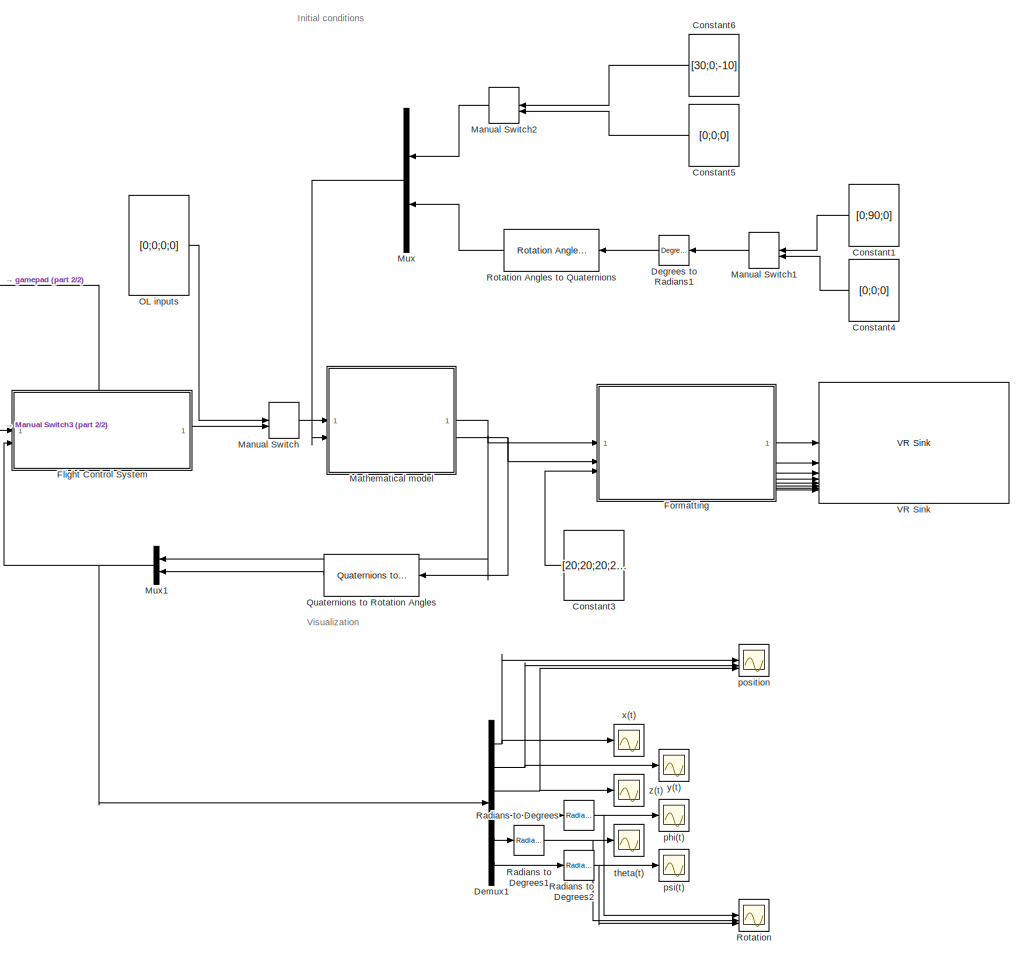
[diagram: root canvas - part 1/2, middle right region]
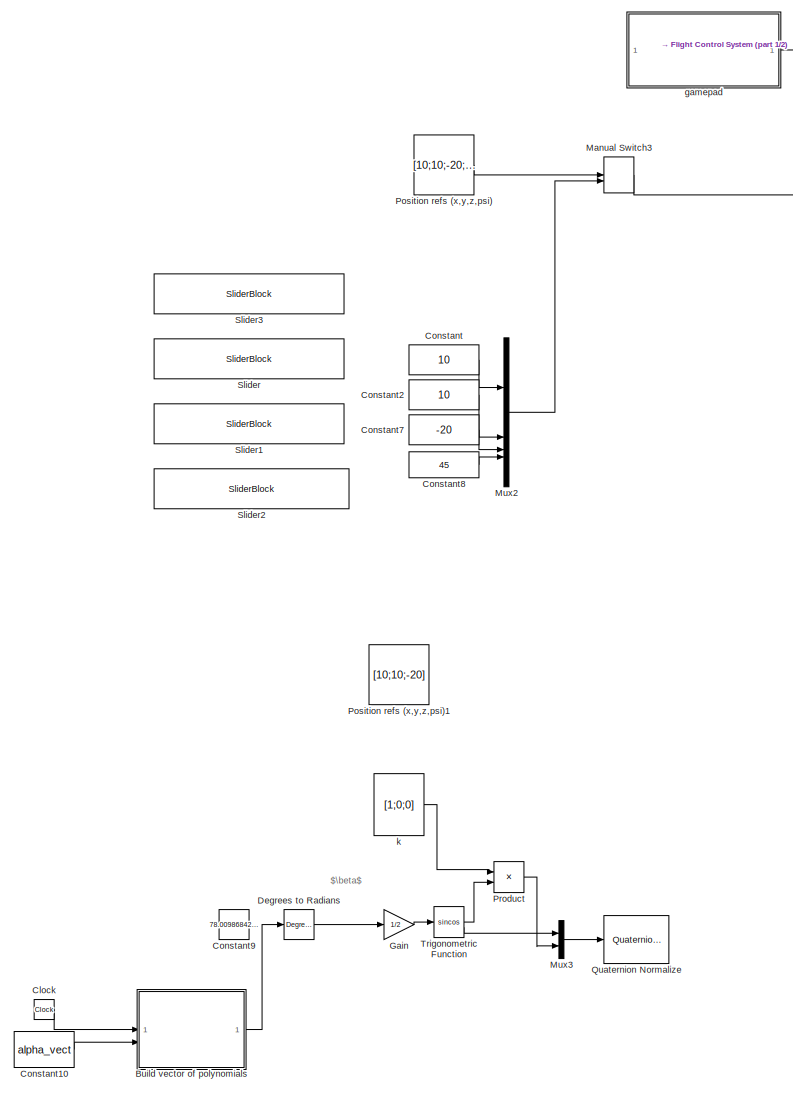
[diagram: root canvas - part 2/2, left side, full height]
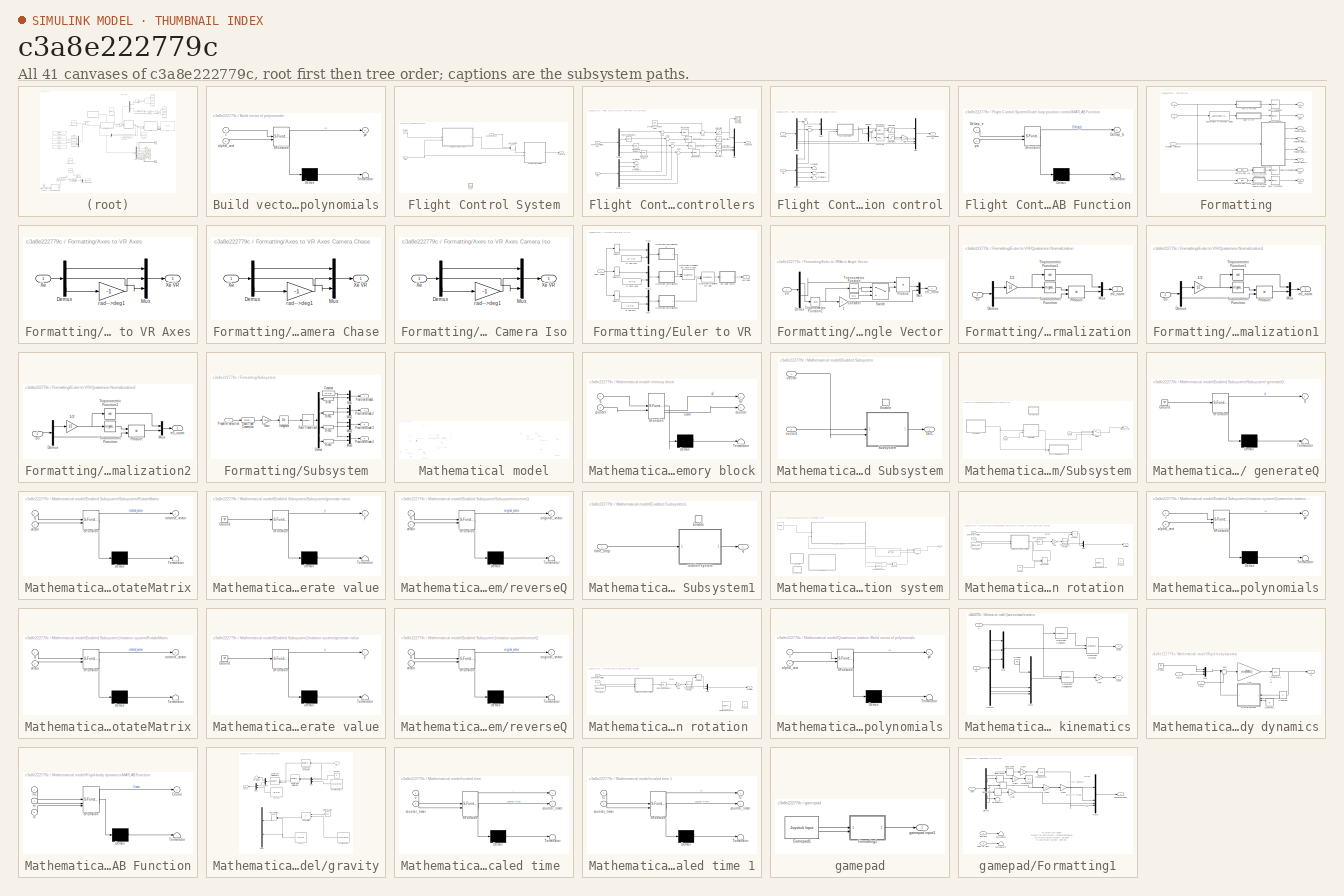
[diagram: thumbnail index - all 41 canvases of the model, root first then tree order]
MODEL slx_c3a8e222779c
KIND model
CONFIG AbsTol = auto
CONFIG EnableMultiTasking = on
CONFIG FixedStep = 0.005
CONFIG MaxStep = auto
CONFIG MinStep = auto
CONFIG RelTol = 1e-3
CONFIG SampleTimeConstraint = Unconstrained
CONFIG SolverName = ode3
CONFIG StartTime = 0
CONFIG StopTime = inf
BLOCK [SubSystem] Build vector of polynomials
  Commented = on
  ErrorFcn = Stateflow.Translate.translate
  PermitHierarchicalResolution = ExplicitOnly
  SFBlockType = MATLAB Function
  TreatAsAtomicUnit = on
BLOCK [Demux] Build vector of polynomials/ Demux 
  Outputs = 1
BLOCK [S-Function] Build vector of polynomials/ SFunction 
  EnableBusSupport = on
  FunctionName = sf_sfun
  PortCounts = [2 2]
  SFcnIsStateOwnerBlock = off
  SFunctionDeploymentMode = off
  Tag = Stateflow S-Function 4
BLOCK [Terminator] Build vector of polynomials/ Terminator 
BLOCK [Inport] Build vector of polynomials/alpha_vect
  Port = 2
BLOCK [Inport] Build vector of polynomials/t
BLOCK [Outport] Build vector of polynomials/yd
BLOCK [Clock] Clock
  Commented = on
BLOCK [Constant] Constant
  Value = 10
BLOCK [Constant] Constant1
  NameLocation = top
  Value = [0;90;0]
  VectorParams1D = off
BLOCK [Constant] Constant10
  Commented = on
  Value = alpha_vect
  VectorParams1D = off
BLOCK [Constant] Constant2
  Value = 10
BLOCK [Constant] Constant3
  Value = [20;20;20;20]
  VectorParams1D = off
BLOCK [Constant] Constant4
  NameLocation = top
  Value = [0;0;0]
  VectorParams1D = off
BLOCK [Constant] Constant5
  Value = [0;0;0]
  VectorParams1D = off
BLOCK [Constant] Constant6
  Value = [30;0;-10]
  VectorParams1D = off
BLOCK [Constant] Constant7
  Value = -20
BLOCK [Constant] Constant8
  Value = 45
BLOCK [Constant] Constant9
  Commented = on
  Value = 78.00986842105263
BLOCK [Reference] Degrees to Radians  REF=simulink_extras/Transformations/Degrees to
Radians
  Commented = on
  SourceBlock = simulink_extras/Transformations/Degrees to\nRadians
  SourceType = DegreesToRadians
BLOCK [Reference] Degrees to Radians1  REF=simulink_extras/Transformations/Degrees to
Radians
  NameLocation = top
  SourceBlock = simulink_extras/Transformations/Degrees to\nRadians
  SourceType = DegreesToRadians
BLOCK [Demux] Demux1
  Outputs = 6
BLOCK [SubSystem] Flight Control System
  PortSchema = {"entries":[{"content":{"sides":[{"content":{"connectorIds":["In1","In2"]},"type":"ConnectorPlacement.EquallySpacedRectSide","uuid":"8ffec179-99fb-4b4c-a09d-a73fa0154dea"},{"content":{"connectorIds":["Out1"],"side":"RIGHT"},"type":"ConnectorPlacement.EquallySpacedRectSide","uuid":"b9ff487d-1da1-449a-81c9-f1838b0d3727"},{"content":{"connectorIds":["In3"],"side":"TOP"},"type":"ConnectorPlacement.Equ...<+251ch>
BLOCK [Outport] Flight Control System/Fz,mx,my,mz
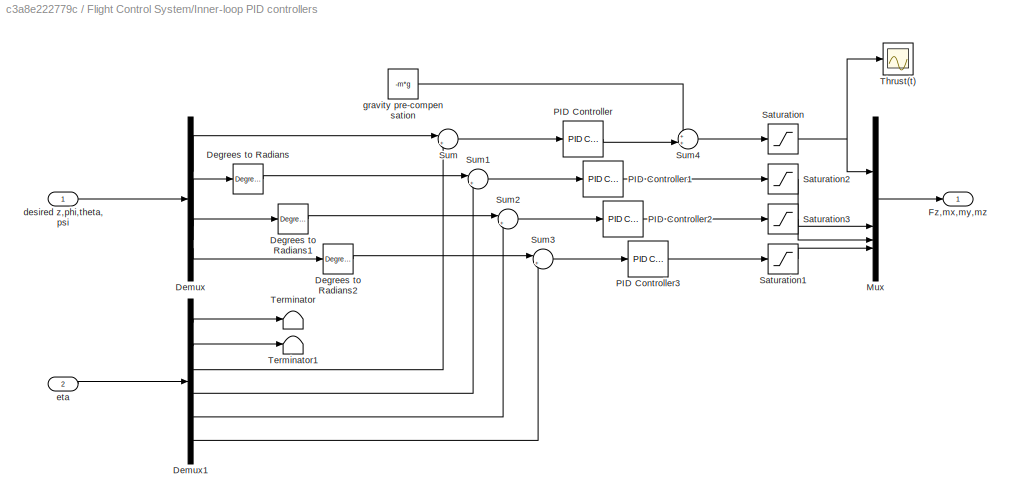
BLOCK [SubSystem] Flight Control System/Inner-loop PID controllers
BLOCK [Reference] Flight Control System/Inner-loop PID controllers/Degrees to Radians  REF=simulink_extras/Transformations/Degrees to
Radians
  SourceBlock = simulink_extras/Transformations/Degrees to\nRadians
  SourceType = DegreesToRadians
BLOCK [Reference] Flight Control System/Inner-loop PID controllers/Degrees to Radians1  REF=simulink_extras/Transformations/Degrees to
Radians
  SourceBlock = simulink_extras/Transformations/Degrees to\nRadians
  SourceType = DegreesToRadians
BLOCK [Reference] Flight Control System/Inner-loop PID controllers/Degrees to Radians2  REF=simulink_extras/Transformations/Degrees to
Radians
  SourceBlock = simulink_extras/Transformations/Degrees to\nRadians
  SourceType = DegreesToRadians
BLOCK [Demux] Flight Control System/Inner-loop PID controllers/Demux
BLOCK [Demux] Flight Control System/Inner-loop PID controllers/Demux1
  Outputs = 6
BLOCK [Outport] Flight Control System/Inner-loop PID controllers/Fz,mx,my,mz
BLOCK [Mux] Flight Control System/Inner-loop PID controllers/Mux
  DisplayOption = bar
BLOCK [Reference] Flight Control System/Inner-loop PID controllers/PID Controller  REF=slpidlib/PID Controller
  LibrarySourceBlock = simulink/Continuous/PID Controller
  SourceBlock = slpidlib/PID Controller
  SourceType = PID 1dof
BLOCK [Reference] Flight Control System/Inner-loop PID controllers/PID Controller1  REF=slpidlib/PID Controller
  LibrarySourceBlock = simulink/Continuous/PID Controller
  SourceBlock = slpidlib/PID Controller
  SourceType = PID 1dof
BLOCK [Reference] Flight Control System/Inner-loop PID controllers/PID Controller2  REF=slpidlib/PID Controller
  LibrarySourceBlock = simulink/Continuous/PID Controller
  SourceBlock = slpidlib/PID Controller
  SourceType = PID 1dof
BLOCK [Reference] Flight Control System/Inner-loop PID controllers/PID Controller3  REF=slpidlib/PID Controller
  LibrarySourceBlock = simulink/Continuous/PID Controller
  SourceBlock = slpidlib/PID Controller
  SourceType = PID 1dof
BLOCK [Saturate] Flight Control System/Inner-loop PID controllers/Saturation
  LowerLimit = -100
  UpperLimit = 100
BLOCK [Saturate] Flight Control System/Inner-loop PID controllers/Saturation1
  LowerLimit = -100
  UpperLimit = 100
BLOCK [Saturate] Flight Control System/Inner-loop PID controllers/Saturation2
  LowerLimit = -100
  UpperLimit = 100
BLOCK [Saturate] Flight Control System/Inner-loop PID controllers/Saturation3
  LowerLimit = -100
  UpperLimit = 100
BLOCK [Sum] Flight Control System/Inner-loop PID controllers/Sum
  Inputs = |+-
BLOCK [Sum] Flight Control System/Inner-loop PID controllers/Sum1
  Inputs = |+-
BLOCK [Sum] Flight Control System/Inner-loop PID controllers/Sum2
  Inputs = |+-
BLOCK [Sum] Flight Control System/Inner-loop PID controllers/Sum3
  Inputs = |+-
BLOCK [Sum] Flight Control System/Inner-loop PID controllers/Sum4
  Inputs = ++|
BLOCK [Terminator] Flight Control System/Inner-loop PID controllers/Terminator
BLOCK [Terminator] Flight Control System/Inner-loop PID controllers/Terminator1
BLOCK [Scope] Flight Control System/Inner-loop PID controllers/Thrust(t)
  Floating = off
  NumInputPorts = 1
  ScopeSpecificationString = Simulink.scopes.TimeScopeBlockCfg('CurrentConfiguration', extmgr.ConfigurationSet(extmgr.Configuration('Core','General UI',true),extmgr.Configuration('Core','Source UI',true),extmgr.Configuration('Sources','WiredSimulink',true,'DataLoggingVariableName','ScopeData6'),extmgr.Configuration('Visuals','Time Domain',true,'SerializedDisplays',{struct('MinYLimReal','-112.66583','MaxYLimReal','13.99248','Y...<+1456ch>
BLOCK [Inport] Flight Control System/Inner-loop PID controllers/desired z,phi,theta,psi
BLOCK [Inport] Flight Control System/Inner-loop PID controllers/eta
  Port = 2
BLOCK [Constant] Flight Control System/Inner-loop PID controllers/gravity pre-compensation
  Value = -m*g
BLOCK [ManualSwitch] Flight Control System/Manual Switch
  CurrentSetting = 0
BLOCK [SubSystem] Flight Control System/Outer loop position control
BLOCK [Demux] Flight Control System/Outer loop position control/Demux
BLOCK [Demux] Flight Control System/Outer loop position control/Demux1
  Outputs = 6
BLOCK [Demux] Flight Control System/Outer loop position control/Demux2
  Outputs = 2
BLOCK [Gain] Flight Control System/Outer loop position control/Gain
  Gain = -1
BLOCK [SubSystem] Flight Control System/Outer loop position control/MATLAB Function
  ErrorFcn = Stateflow.Translate.translate
  PermitHierarchicalResolution = ExplicitOnly
  SFBlockType = MATLAB Function
  TreatAsAtomicUnit = on
BLOCK [Demux] Flight Control System/Outer loop position control/MATLAB Function/ Demux 
  Outputs = 1
BLOCK [S-Function] Flight Control System/Outer loop position control/MATLAB Function/ SFunction 
  EnableBusSupport = on
  FunctionName = sf_sfun
  PortCounts = [2 2]
  SFcnIsStateOwnerBlock = off
  SFunctionDeploymentMode = off
  Tag = Stateflow S-Function 1
BLOCK [Terminator] Flight Control System/Outer loop position control/MATLAB Function/ Terminator 
BLOCK [Outport] Flight Control System/Outer loop position control/MATLAB Function/Deltap_b
BLOCK [Inport] Flight Control System/Outer loop position control/MATLAB Function/Deltap_e
BLOCK [Inport] Flight Control System/Outer loop position control/MATLAB Function/psi
  Port = 2
BLOCK [Mux] Flight Control System/Outer loop position control/Mux
  DisplayOption = bar
BLOCK [Mux] Flight Control System/Outer loop position control/Mux1
  DisplayOption = bar
  Inputs = 2
BLOCK [Reference] Flight Control System/Outer loop position control/PID Controller  REF=slpidlib/PID Controller
  LibrarySourceBlock = simulink/Continuous/PID Controller
  SourceBlock = slpidlib/PID Controller
  SourceType = PID 1dof
BLOCK [Reference] Flight Control System/Outer loop position control/PID Controller2  REF=slpidlib/PID Controller
  LibrarySourceBlock = simulink/Continuous/PID Controller
  SourceBlock = slpidlib/PID Controller
  SourceType = PID 1dof
BLOCK [Inport] Flight Control System/Outer loop position control/Pos. refs
BLOCK [Saturate] Flight Control System/Outer loop position control/Saturation
  LowerLimit = -5
  UpperLimit = 5
BLOCK [Saturate] Flight Control System/Outer loop position control/Saturation1
  LowerLimit = -5
  UpperLimit = 5
BLOCK [Sum] Flight Control System/Outer loop position control/Sum
  Inputs = |+-
BLOCK [Sum] Flight Control System/Outer loop position control/Sum1
  Inputs = |+-
BLOCK [Terminator] Flight Control System/Outer loop position control/Terminator
BLOCK [Terminator] Flight Control System/Outer loop position control/Terminator1
BLOCK [Terminator] Flight Control System/Outer loop position control/Terminator2
BLOCK [Outport] Flight Control System/Outer loop position control/desired z,phi,theta,psi
BLOCK [Inport] Flight Control System/Outer loop position control/eta
  Port = 2
BLOCK [Inport] Flight Control System/Pos. refs
BLOCK [Inport] Flight Control System/eta
  Port = 2
BLOCK [Inport] Flight Control System/gamepad input
  Port = 3
BLOCK [Scope] Flight Control System/m_y(t)
  Floating = off
  NumInputPorts = 1
  ScopeSpecificationString = Simulink.scopes.TimeScopeBlockCfg('CurrentConfiguration', extmgr.ConfigurationSet(extmgr.Configuration('Core','General UI',true),extmgr.Configuration('Core','Source UI',true),extmgr.Configuration('Sources','WiredSimulink',true,'DataLoggingVariableName','ScopeData3'),extmgr.Configuration('Visuals','Time Domain',true,'SerializedDisplays',{struct('MinYLimReal','-1.00000','MaxYLimReal','1.00000','YLab...<+1433ch>
BLOCK [SubSystem] Formatting
BLOCK [SubSystem] Formatting/Axes to VR Axes
BLOCK [SubSystem] Formatting/Axes to VR Axes Camera Chase
BLOCK [Demux] Formatting/Axes to VR Axes Camera Chase/Demux
  DisplayOption = none
  Outputs = 3
BLOCK [Mux] Formatting/Axes to VR Axes Camera Chase/Mux
  DisplayOption = bar
  Inputs = 3
BLOCK [Inport] Formatting/Axes to VR Axes Camera Chase/Xe
BLOCK [Outport] Formatting/Axes to VR Axes Camera Chase/Xe VR
  VectorParamsAs1DForOutWhenUnconnected = off
BLOCK [Gain] Formatting/Axes to VR Axes Camera Chase/rad-->deg1
  Gain = -1
  NameLocation = top
  OutDataTypeStr = Inherit: Same as input
  ParamDataTypeStr = Inherit: Same as input
  SaturateOnIntegerOverflow = on
BLOCK [SubSystem] Formatting/Axes to VR Axes Camera Iso
BLOCK [Demux] Formatting/Axes to VR Axes Camera Iso/Demux
  DisplayOption = none
  Outputs = 3
BLOCK [Mux] Formatting/Axes to VR Axes Camera Iso/Mux
  DisplayOption = bar
  Inputs = 3
BLOCK [Inport] Formatting/Axes to VR Axes Camera Iso/Xe
BLOCK [Outport] Formatting/Axes to VR Axes Camera Iso/Xe VR
  VectorParamsAs1DForOutWhenUnconnected = off
BLOCK [Gain] Formatting/Axes to VR Axes Camera Iso/rad-->deg1
  Gain = -1
  NameLocation = top
  OutDataTypeStr = Inherit: Same as input
  ParamDataTypeStr = Inherit: Same as input
  SaturateOnIntegerOverflow = on
BLOCK [Demux] Formatting/Axes to VR Axes/Demux
  DisplayOption = none
  Outputs = 3
BLOCK [Mux] Formatting/Axes to VR Axes/Mux
  DisplayOption = bar
  Inputs = 3
BLOCK [Inport] Formatting/Axes to VR Axes/Xe
BLOCK [Outport] Formatting/Axes to VR Axes/Xe VR
  VectorParamsAs1DForOutWhenUnconnected = off
BLOCK [Gain] Formatting/Axes to VR Axes/rad-->deg1
  Gain = -1
  NameLocation = top
  OutDataTypeStr = Inherit: Same as input
  ParamDataTypeStr = Inherit: Same as input
  SaturateOnIntegerOverflow = on
BLOCK [Bias] Formatting/Camera bias Chase
  Bias = [-4 0 -.9558]'
  SaturateOnIntegerOverflow = off
BLOCK [Bias] Formatting/Camera bias Iso
  Bias = [0.9009 .99 -.6247]'
  SaturateOnIntegerOverflow = off
BLOCK [SubSystem] Formatting/Euler to VR
BLOCK [Outport] Formatting/Euler to VR/Axis Angle
  VectorParamsAs1DForOutWhenUnconnected = off
BLOCK [SubSystem] Formatting/Euler to VR/Axis Angle Vector
BLOCK [Gain] Formatting/Euler to VR/Axis Angle Vector/2
  Gain = 2
  OutDataTypeStr = Inherit: Same as input
  ParamDataTypeStr = Inherit: Same as input
  SaturateOnIntegerOverflow = on
BLOCK [Constant] Formatting/Euler to VR/Axis Angle Vector/Constant
  Value = 1e-6
BLOCK [Demux] Formatting/Euler to VR/Axis Angle Vector/Demux
  DisplayOption = none
  Outputs = [1 3 ]
BLOCK [Mux] Formatting/Euler to VR/Axis Angle Vector/Mux
  DisplayOption = bar
  Inputs = 2
BLOCK [Product] Formatting/Euler to VR/Axis Angle Vector/Product
  InputSameDT = on
  Inputs = */
  OutDataTypeStr = Inherit: Same as first input
  SaturateOnIntegerOverflow = on
BLOCK [Switch] Formatting/Euler to VR/Axis Angle Vector/Switch
  Criteria = u2 ~= 0
  InputSameDT = off
  SaturateOnIntegerOverflow = off
BLOCK [Trigonometry] Formatting/Euler to VR/Axis Angle Vector/Trigonometric Function
BLOCK [Trigonometry] Formatting/Euler to VR/Axis Angle Vector/Trigonometric Function2
  Operator = acos
BLOCK [Inport] Formatting/Euler to VR/Axis Angle Vector/e0
BLOCK [Outport] Formatting/Euler to VR/Axis Angle Vector/e0_norm
  VectorParamsAs1DForOutWhenUnconnected = off
BLOCK [Inport] Formatting/Euler to VR/Euler Angles
BLOCK [Mux] Formatting/Euler to VR/Mux
  DisplayOption = bar
  Inputs = 2
BLOCK [Mux] Formatting/Euler to VR/Mux1
  DisplayOption = bar
  Inputs = 2
BLOCK [Mux] Formatting/Euler to VR/Mux2
  DisplayOption = bar
  Inputs = 2
BLOCK [Reference] Formatting/Euler to VR/Quaternion Multiplication (Pitch & Yaw)  REF=aerolibutil/Quaternion
Multiplication
  SourceBlock = aerolibutil/Quaternion\nMultiplication
  SourceType = Quaternion Multiplication
BLOCK [Reference] Formatting/Euler to VR/Quaternion Multiplication (Roll)  REF=aerolibutil/Quaternion
Multiplication
  SourceBlock = aerolibutil/Quaternion\nMultiplication
  SourceType = Quaternion Multiplication
BLOCK [SubSystem] Formatting/Euler to VR/Quaternion Normalization
BLOCK [Gain] Formatting/Euler to VR/Quaternion Normalization/1//2
  Gain = 1/2
  OutDataTypeStr = Inherit: Same as input
  ParamDataTypeStr = Inherit: Same as input
  SaturateOnIntegerOverflow = on
BLOCK [Demux] Formatting/Euler to VR/Quaternion Normalization/Demux
  DisplayOption = none
  Outputs = [1 3]
BLOCK [Mux] Formatting/Euler to VR/Quaternion Normalization/Mux
  DisplayOption = bar
  Inputs = 2
BLOCK [Product] Formatting/Euler to VR/Quaternion Normalization/Product
  InputSameDT = on
  OutDataTypeStr = Inherit: Same as first input
  SaturateOnIntegerOverflow = on
BLOCK [Trigonometry] Formatting/Euler to VR/Quaternion Normalization/Trigonometric Function
BLOCK [Trigonometry] Formatting/Euler to VR/Quaternion Normalization/Trigonometric Function1
  Operator = cos
BLOCK [Inport] Formatting/Euler to VR/Quaternion Normalization/e0
BLOCK [Outport] Formatting/Euler to VR/Quaternion Normalization/e0_norm
  VectorParamsAs1DForOutWhenUnconnected = off
BLOCK [SubSystem] Formatting/Euler to VR/Quaternion Normalization1
BLOCK [Gain] Formatting/Euler to VR/Quaternion Normalization1/1//2
  Gain = 1/2
  OutDataTypeStr = Inherit: Same as input
  ParamDataTypeStr = Inherit: Same as input
  SaturateOnIntegerOverflow = on
BLOCK [Demux] Formatting/Euler to VR/Quaternion Normalization1/Demux
  DisplayOption = none
  Outputs = [1 3]
BLOCK [Mux] Formatting/Euler to VR/Quaternion Normalization1/Mux
  DisplayOption = bar
  Inputs = 2
BLOCK [Product] Formatting/Euler to VR/Quaternion Normalization1/Product
  InputSameDT = on
  OutDataTypeStr = Inherit: Same as first input
  SaturateOnIntegerOverflow = on
BLOCK [Trigonometry] Formatting/Euler to VR/Quaternion Normalization1/Trigonometric Function
BLOCK [Trigonometry] Formatting/Euler to VR/Quaternion Normalization1/Trigonometric Function1
  Operator = cos
BLOCK [Inport] Formatting/Euler to VR/Quaternion Normalization1/e0
BLOCK [Outport] Formatting/Euler to VR/Quaternion Normalization1/e0_norm
  VectorParamsAs1DForOutWhenUnconnected = off
BLOCK [SubSystem] Formatting/Euler to VR/Quaternion Normalization2
BLOCK [Gain] Formatting/Euler to VR/Quaternion Normalization2/1//2
  Gain = 1/2
  OutDataTypeStr = Inherit: Same as input
  ParamDataTypeStr = Inherit: Same as input
  SaturateOnIntegerOverflow = on
BLOCK [Demux] Formatting/Euler to VR/Quaternion Normalization2/Demux
  DisplayOption = none
  Outputs = [1 3]
BLOCK [Mux] Formatting/Euler to VR/Quaternion Normalization2/Mux
  DisplayOption = bar
  Inputs = 2
BLOCK [Product] Formatting/Euler to VR/Quaternion Normalization2/Product
  InputSameDT = on
  OutDataTypeStr = Inherit: Same as first input
  SaturateOnIntegerOverflow = on
BLOCK [Trigonometry] Formatting/Euler to VR/Quaternion Normalization2/Trigonometric Function
BLOCK [Trigonometry] Formatting/Euler to VR/Quaternion Normalization2/Trigonometric Function1
  Operator = cos
BLOCK [Inport] Formatting/Euler to VR/Quaternion Normalization2/e0
BLOCK [Outport] Formatting/Euler to VR/Quaternion Normalization2/e0_norm
  VectorParamsAs1DForOutWhenUnconnected = off
BLOCK [Selector] Formatting/Euler to VR/Selector
  IndexOptions = Index vector (dialog)
  Indices = [3]
  InputPortWidth = 3
  OutputSizes = 1
BLOCK [Selector] Formatting/Euler to VR/Selector1
  IndexOptions = Index vector (dialog)
  Indices = [2]
  InputPortWidth = 3
  OutputSizes = 1
BLOCK [Selector] Formatting/Euler to VR/Selector2
  IndexOptions = Index vector (dialog)
  Indices = [1]
  InputPortWidth = 3
  OutputSizes = 1
BLOCK [Constant] Formatting/Euler to VR/Vr Pitch Axes
  NameLocation = top
  Value = [0 0 1]
BLOCK [Constant] Formatting/Euler to VR/Vr Roll Axes
  NameLocation = top
  Value = [1 0 0]
BLOCK [Constant] Formatting/Euler to VR/Vr Yaw Axes
  Value = [0 -1 0]
BLOCK [Outport] Formatting/Out1
BLOCK [Outport] Formatting/Out2
  Port = 2
BLOCK [Outport] Formatting/Out7
  Port = 7
BLOCK [Outport] Formatting/Out8
  Port = 8
BLOCK [Outport] Formatting/Position Blade 2
  Port = 4
BLOCK [Outport] Formatting/Position Blade 3
  Port = 5
BLOCK [Outport] Formatting/Position Blade 4
  Port = 6
BLOCK [Outport] Formatting/Position Blade1
  Port = 3
BLOCK [Inport] Formatting/Propeller velocities
  Port = 3
BLOCK [Reference] Formatting/Quaternions to Rotation Angles  REF=sharedtransform/Quaternions to Rotation Angles
  AttributesFormatString = Rotation Order: %<rotationOrder>
  LibrarySourceBlock = aerolibtransform2/Quaternions to Rotation Angles
  SourceBlock = sharedtransform/Quaternions to Rotation Angles
  SourceType = Quat2Ang
BLOCK [RateTransition] Formatting/Rate Transition
BLOCK [RateTransition] Formatting/Rate Transition1
BLOCK [RateTransition] Formatting/Rate Transition2
BLOCK [RateTransition] Formatting/Rate Transition3
BLOCK [SubSystem] Formatting/Subsystem
BLOCK [Bias] Formatting/Subsystem/Bias
  Bias = .1
  SaturateOnIntegerOverflow = off
BLOCK [Bias] Formatting/Subsystem/Bias1
  Bias = -.3
  SaturateOnIntegerOverflow = off
BLOCK [Bias] Formatting/Subsystem/Bias2
  Bias = .5
  SaturateOnIntegerOverflow = off
BLOCK [Bias] Formatting/Subsystem/Bias3
  Bias = .7
  SaturateOnIntegerOverflow = off
BLOCK [Constant] Formatting/Subsystem/Constant
  Value = [0 1 0]
BLOCK [DataTypeConversion] Formatting/Subsystem/Data Type Conversion
  OutDataTypeStr = double
  RndMeth = Floor
  SaturateOnIntegerOverflow = off
BLOCK [Demux] Formatting/Subsystem/Demux
BLOCK [Gain] Formatting/Subsystem/Gain
  Gain = 1.38408
BLOCK [Integrator] Formatting/Subsystem/Integrator
  InitialCondition = [.1 ; .2 ;-.3 ;-.4]
  WrapState = on
  WrappedStateLowerValue = -2*pi
  WrappedStateUpperValue = 2*pi
BLOCK [Mux] Formatting/Subsystem/Mux
  DisplayOption = bar
  Inputs = 2
BLOCK [Mux] Formatting/Subsystem/Mux1
  DisplayOption = bar
  Inputs = 2
BLOCK [Mux] Formatting/Subsystem/Mux2
  DisplayOption = bar
  Inputs = 2
BLOCK [Mux] Formatting/Subsystem/Mux3
  DisplayOption = bar
  Inputs = 2
BLOCK [Outport] Formatting/Subsystem/Position Blade 2
  Port = 2
  VectorParamsAs1DForOutWhenUnconnected = off
BLOCK [Outport] Formatting/Subsystem/Position Blade 3
  Port = 3
  VectorParamsAs1DForOutWhenUnconnected = off
BLOCK [Outport] Formatting/Subsystem/Position Blade 4
  Port = 4
  VectorParamsAs1DForOutWhenUnconnected = off
BLOCK [Outport] Formatting/Subsystem/Position Blade1
  VectorParamsAs1DForOutWhenUnconnected = off
BLOCK [Inport] Formatting/Subsystem/Propeller velocities
BLOCK [RateTransition] Formatting/Subsystem/Rate Transition2
BLOCK [Inport] Formatting/p
BLOCK [Inport] Formatting/q
  Port = 2
BLOCK [Gain] Gain
  Commented = on
  Gain = 1/2
BLOCK [ManualSwitch] Manual Switch
  CurrentSetting = 0
BLOCK [ManualSwitch] Manual Switch1
  CurrentSetting = 0
  NameLocation = top
BLOCK [ManualSwitch] Manual Switch2
  CurrentSetting = 0
BLOCK [ManualSwitch] Manual Switch3
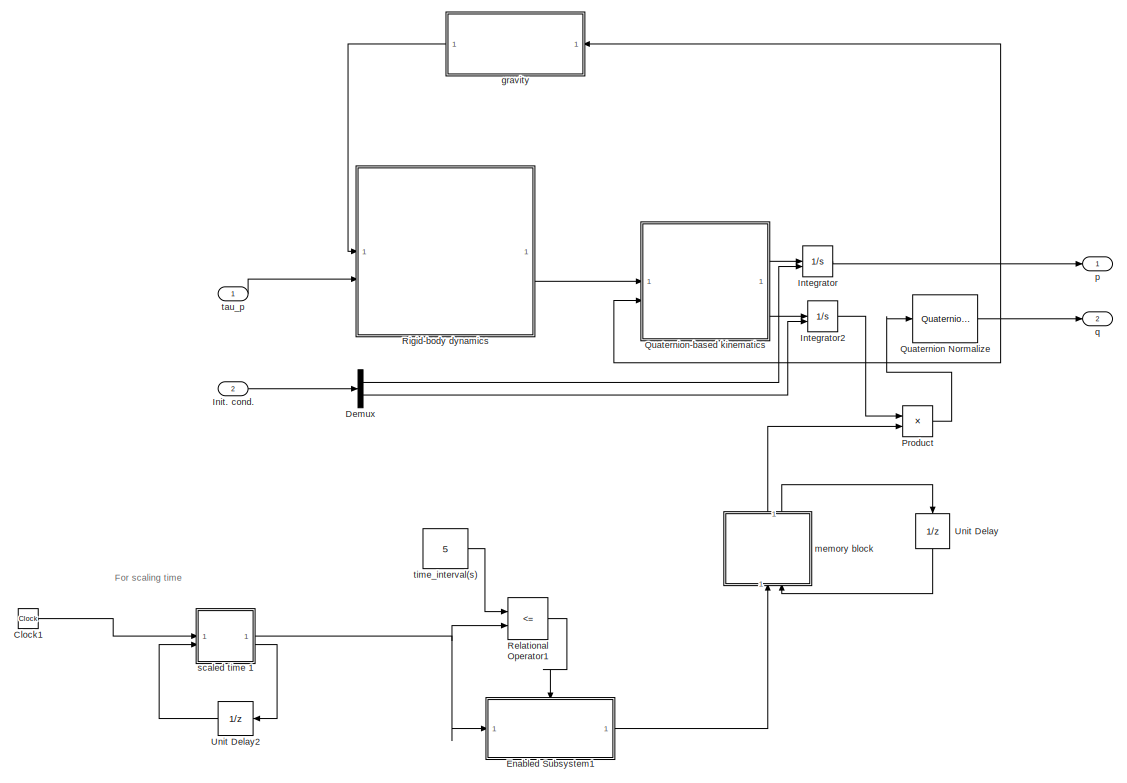
[diagram: Mathematical model - part 1/2, left side, full height]
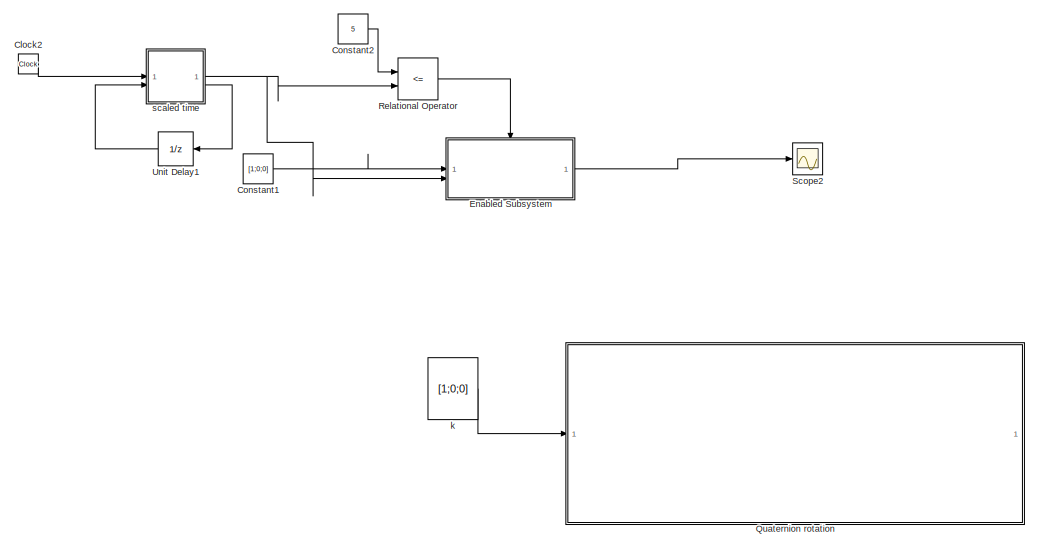
[diagram: Mathematical model - part 2/2, middle right region]
BLOCK [SubSystem] Mathematical model
BLOCK [SubSystem] Mathematical model/ memory block
  ErrorFcn = Stateflow.Translate.translate
  NameLocation = right
  PermitHierarchicalResolution = ExplicitOnly
  SFBlockType = MATLAB Function
  TreatAsAtomicUnit = on
BLOCK [Demux] Mathematical model/ memory block/ Demux 
  Outputs = 1
BLOCK [S-Function] Mathematical model/ memory block/ SFunction 
  EnableBusSupport = on
  FunctionName = sf_sfun
  PortCounts = [2 3]
  SFcnIsStateOwnerBlock = off
  SFunctionDeploymentMode = off
  Tag = Stateflow S-Function 15
BLOCK [Terminator] Mathematical model/ memory block/ Terminator 
BLOCK [Outport] Mathematical model/ memory block/counter
  Port = 2
BLOCK [Inport] Mathematical model/ memory block/counter 
  Port = 2
BLOCK [Inport] Mathematical model/ memory block/q
BLOCK [Outport] Mathematical model/ memory block/q2
BLOCK [Clock] Mathematical model/Clock1
BLOCK [Clock] Mathematical model/Clock2
  Commented = on
BLOCK [Constant] Mathematical model/Constant1
  Commented = on
  Value = [1;0;0]
BLOCK [Constant] Mathematical model/Constant2
  Commented = on
  Value = 5
BLOCK [Demux] Mathematical model/Demux
  Outputs = [3,4]
BLOCK [SubSystem] Mathematical model/Enabled Subsystem
  Commented = on
  TreatAsAtomicUnit = on
BLOCK [EnablePort] Mathematical model/Enabled Subsystem/Enable
BLOCK [Outport] Mathematical model/Enabled Subsystem/Out1
BLOCK [SubSystem] Mathematical model/Enabled Subsystem/Subsystem
BLOCK [SubSystem] Mathematical model/Enabled Subsystem/Subsystem/ generateQ
  ErrorFcn = Stateflow.Translate.translate
  PermitHierarchicalResolution = ExplicitOnly
  SFBlockType = MATLAB Function
  TreatAsAtomicUnit = on
BLOCK [Demux] Mathematical model/Enabled Subsystem/Subsystem/ generateQ/ Demux 
  Outputs = 1
BLOCK [Ground] Mathematical model/Enabled Subsystem/Subsystem/ generateQ/ Ground 
BLOCK [S-Function] Mathematical model/Enabled Subsystem/Subsystem/ generateQ/ SFunction 
  EnableBusSupport = on
  FunctionName = sf_sfun
  PortCounts = [1 2]
  SFcnIsStateOwnerBlock = off
  SFunctionDeploymentMode = off
  Tag = Stateflow S-Function 6
BLOCK [Terminator] Mathematical model/Enabled Subsystem/Subsystem/ generateQ/ Terminator 
BLOCK [Outport] Mathematical model/Enabled Subsystem/Subsystem/ generateQ/q
BLOCK [SubSystem] Mathematical model/Enabled Subsystem/Subsystem/RotateMatrix
  ErrorFcn = Stateflow.Translate.translate
  PermitHierarchicalResolution = ExplicitOnly
  SFBlockType = MATLAB Function
  TreatAsAtomicUnit = on
BLOCK [Demux] Mathematical model/Enabled Subsystem/Subsystem/RotateMatrix/ Demux 
  Outputs = 1
BLOCK [S-Function] Mathematical model/Enabled Subsystem/Subsystem/RotateMatrix/ SFunction 
  EnableBusSupport = on
  FunctionName = sf_sfun
  PortCounts = [2 2]
  SFcnIsStateOwnerBlock = off
  SFunctionDeploymentMode = off
  Tag = Stateflow S-Function 7
BLOCK [Terminator] Mathematical model/Enabled Subsystem/Subsystem/RotateMatrix/ Terminator 
BLOCK [Inport] Mathematical model/Enabled Subsystem/Subsystem/RotateMatrix/q
BLOCK [Outport] Mathematical model/Enabled Subsystem/Subsystem/RotateMatrix/rotated_vector
BLOCK [Inport] Mathematical model/Enabled Subsystem/Subsystem/RotateMatrix/vector
  Port = 2
BLOCK [Switch] Mathematical model/Enabled Subsystem/Subsystem/Switch
  Criteria = u2 > Threshold
  InputSameDT = off
  SaturateOnIntegerOverflow = off
  Threshold = 7
BLOCK [SubSystem] Mathematical model/Enabled Subsystem/Subsystem/generate value
  Commented = on
  ErrorFcn = Stateflow.Translate.translate
  PermitHierarchicalResolution = ExplicitOnly
  SFBlockType = MATLAB Function
  TreatAsAtomicUnit = on
BLOCK [Demux] Mathematical model/Enabled Subsystem/Subsystem/generate value/ Demux 
  Outputs = 1
BLOCK [Ground] Mathematical model/Enabled Subsystem/Subsystem/generate value/ Ground 
BLOCK [S-Function] Mathematical model/Enabled Subsystem/Subsystem/generate value/ SFunction 
  EnableBusSupport = on
  FunctionName = sf_sfun
  PortCounts = [1 2]
  SFcnIsStateOwnerBlock = off
  SFunctionDeploymentMode = off
  Tag = Stateflow S-Function 8
BLOCK [Terminator] Mathematical model/Enabled Subsystem/Subsystem/generate value/ Terminator 
BLOCK [Outport] Mathematical model/Enabled Subsystem/Subsystem/generate value/y
BLOCK [Outport] Mathematical model/Enabled Subsystem/Subsystem/original_vector
BLOCK [SubSystem] Mathematical model/Enabled Subsystem/Subsystem/reverseQ
  ErrorFcn = Stateflow.Translate.translate
  PermitHierarchicalResolution = ExplicitOnly
  SFBlockType = MATLAB Function
  TreatAsAtomicUnit = on
BLOCK [Demux] Mathematical model/Enabled Subsystem/Subsystem/reverseQ/ Demux 
  Outputs = 1
BLOCK [S-Function] Mathematical model/Enabled Subsystem/Subsystem/reverseQ/ SFunction 
  EnableBusSupport = on
  FunctionName = sf_sfun
  PortCounts = [2 2]
  SFcnIsStateOwnerBlock = off
  SFunctionDeploymentMode = off
  Tag = Stateflow S-Function 9
BLOCK [Terminator] Mathematical model/Enabled Subsystem/Subsystem/reverseQ/ Terminator 
BLOCK [Outport] Mathematical model/Enabled Subsystem/Subsystem/reverseQ/original_vector
BLOCK [Inport] Mathematical model/Enabled Subsystem/Subsystem/reverseQ/q
BLOCK [Inport] Mathematical model/Enabled Subsystem/Subsystem/reverseQ/vector
  Port = 2
BLOCK [Inport] Mathematical model/Enabled Subsystem/Subsystem/vector
BLOCK [Inport] Mathematical model/Enabled Subsystem/Subsystem/vector1
  Port = 2
BLOCK [Inport] Mathematical model/Enabled Subsystem/vector
BLOCK [Inport] Mathematical model/Enabled Subsystem/vector1
  Port = 2
BLOCK [SubSystem] Mathematical model/Enabled Subsystem1
  TreatAsAtomicUnit = on
BLOCK [EnablePort] Mathematical model/Enabled Subsystem1/Enable
BLOCK [Outport] Mathematical model/Enabled Subsystem1/q
BLOCK [SubSystem] Mathematical model/Enabled Subsystem1/rotation system
BLOCK [Product] Mathematical model/Enabled Subsystem1/rotation system/Product1
BLOCK [Reference] Mathematical model/Enabled Subsystem1/rotation system/Quaternion Inverse  REF=aerolibutil/Quaternion
Inverse
  SourceBlock = aerolibutil/Quaternion\nInverse
  SourceType = Quaternion Inverse
BLOCK [SubSystem] Mathematical model/Enabled Subsystem1/rotation system/Quaternion rotation 
BLOCK [SubSystem] Mathematical model/Enabled Subsystem1/rotation system/Quaternion rotation /Build vector of polynomials
  ErrorFcn = Stateflow.Translate.translate
  PermitHierarchicalResolution = ExplicitOnly
  SFBlockType = MATLAB Function
  TreatAsAtomicUnit = on
BLOCK [Demux] Mathematical model/Enabled Subsystem1/rotation system/Quaternion rotation /Build vector of polynomials/ Demux 
  Outputs = 1
BLOCK [S-Function] Mathematical model/Enabled Subsystem1/rotation system/Quaternion rotation /Build vector of polynomials/ SFunction 
  EnableBusSupport = on
  FunctionName = sf_sfun
  PortCounts = [2 2]
  SFcnIsStateOwnerBlock = off
  SFunctionDeploymentMode = off
  Tag = Stateflow S-Function 5
BLOCK [Terminator] Mathematical model/Enabled Subsystem1/rotation system/Quaternion rotation /Build vector of polynomials/ Terminator 
BLOCK [Inport] Mathematical model/Enabled Subsystem1/rotation system/Quaternion rotation /Build vector of polynomials/alpha_vect
  Port = 2
BLOCK [Inport] Mathematical model/Enabled Subsystem1/rotation system/Quaternion rotation /Build vector of polynomials/t
BLOCK [Outport] Mathematical model/Enabled Subsystem1/rotation system/Quaternion rotation /Build vector of polynomials/yd
BLOCK [Constant] Mathematical model/Enabled Subsystem1/rotation system/Quaternion rotation /Constant
  Value = 45
BLOCK [Constant] Mathematical model/Enabled Subsystem1/rotation system/Quaternion rotation /Constant1
  Value = alpha_vect
  VectorParams1D = off
BLOCK [Reference] Mathematical model/Enabled Subsystem1/rotation system/Quaternion rotation /Degrees to Radians  REF=simulink_extras/Transformations/Degrees to
Radians
  SourceBlock = simulink_extras/Transformations/Degrees to\nRadians
  SourceType = DegreesToRadians
BLOCK [Gain] Mathematical model/Enabled Subsystem1/rotation system/Quaternion rotation /Gain
  Gain = 1/2
BLOCK [ManualSwitch] Mathematical model/Enabled Subsystem1/rotation system/Quaternion rotation /Manual Switch
  CurrentSetting = 0
BLOCK [Mux] Mathematical model/Enabled Subsystem1/rotation system/Quaternion rotation /Mux
  DisplayOption = bar
  Inputs = 2
BLOCK [Product] Mathematical model/Enabled Subsystem1/rotation system/Quaternion rotation /Product
BLOCK [Product] Mathematical model/Enabled Subsystem1/rotation system/Quaternion rotation /Product1
  Commented = on
BLOCK [Reference] Mathematical model/Enabled Subsystem1/rotation system/Quaternion rotation /Quaternion Inverse  REF=aerolibutil/Quaternion
Inverse
  Commented = on
  SourceBlock = aerolibutil/Quaternion\nInverse
  SourceType = Quaternion Inverse
BLOCK [Trigonometry] Mathematical model/Enabled Subsystem1/rotation system/Quaternion rotation /Trigonometric Function
  Operator = sincos
BLOCK [Inport] Mathematical model/Enabled Subsystem1/rotation system/Quaternion rotation /axis vector rotation
BLOCK [Outport] Mathematical model/Enabled Subsystem1/rotation system/Quaternion rotation /q rotation
BLOCK [Inport] Mathematical model/Enabled Subsystem1/rotation system/Quaternion rotation /t
  Port = 2
BLOCK [SubSystem] Mathematical model/Enabled Subsystem1/rotation system/RotateMatrix
  Commented = on
  ErrorFcn = Stateflow.Translate.translate
  PermitHierarchicalResolution = ExplicitOnly
  SFBlockType = MATLAB Function
  TreatAsAtomicUnit = on
BLOCK [Demux] Mathematical model/Enabled Subsystem1/rotation system/RotateMatrix/ Demux 
  Outputs = 1
BLOCK [S-Function] Mathematical model/Enabled Subsystem1/rotation system/RotateMatrix/ SFunction 
  EnableBusSupport = on
  FunctionName = sf_sfun
  PortCounts = [2 2]
  SFcnIsStateOwnerBlock = off
  SFunctionDeploymentMode = off
  Tag = Stateflow S-Function 11
BLOCK [Terminator] Mathematical model/Enabled Subsystem1/rotation system/RotateMatrix/ Terminator 
BLOCK [Inport] Mathematical model/Enabled Subsystem1/rotation system/RotateMatrix/q
BLOCK [Outport] Mathematical model/Enabled Subsystem1/rotation system/RotateMatrix/rotated_vector
BLOCK [Inport] Mathematical model/Enabled Subsystem1/rotation system/RotateMatrix/vector
  Port = 2
BLOCK [Switch] Mathematical model/Enabled Subsystem1/rotation system/Switch
  Criteria = u2 > Threshold
  InputSameDT = off
  SaturateOnIntegerOverflow = off
  Threshold = 7
BLOCK [SubSystem] Mathematical model/Enabled Subsystem1/rotation system/generate value
  Commented = on
  ErrorFcn = Stateflow.Translate.translate
  PermitHierarchicalResolution = ExplicitOnly
  SFBlockType = MATLAB Function
  TreatAsAtomicUnit = on
BLOCK [Demux] Mathematical model/Enabled Subsystem1/rotation system/generate value/ Demux 
  Outputs = 1
BLOCK [Ground] Mathematical model/Enabled Subsystem1/rotation system/generate value/ Ground 
BLOCK [S-Function] Mathematical model/Enabled Subsystem1/rotation system/generate value/ SFunction 
  EnableBusSupport = on
  FunctionName = sf_sfun
  PortCounts = [1 2]
  SFcnIsStateOwnerBlock = off
  SFunctionDeploymentMode = off
  Tag = Stateflow S-Function 12
BLOCK [Terminator] Mathematical model/Enabled Subsystem1/rotation system/generate value/ Terminator 
BLOCK [Outport] Mathematical model/Enabled Subsystem1/rotation system/generate value/y
BLOCK [Constant] Mathematical model/Enabled Subsystem1/rotation system/k
  Value = [1;0;0]
  VectorParams1D = off
BLOCK [Outport] Mathematical model/Enabled Subsystem1/rotation system/q
BLOCK [SubSystem] Mathematical model/Enabled Subsystem1/rotation system/reverseQ
  Commented = on
  ErrorFcn = Stateflow.Translate.translate
  PermitHierarchicalResolution = ExplicitOnly
  SFBlockType = MATLAB Function
  TreatAsAtomicUnit = on
BLOCK [Demux] Mathematical model/Enabled Subsystem1/rotation system/reverseQ/ Demux 
  Outputs = 1
BLOCK [S-Function] Mathematical model/Enabled Subsystem1/rotation system/reverseQ/ SFunction 
  EnableBusSupport = on
  FunctionName = sf_sfun
  PortCounts = [2 2]
  SFcnIsStateOwnerBlock = off
  SFunctionDeploymentMode = off
  Tag = Stateflow S-Function 13
BLOCK [Terminator] Mathematical model/Enabled Subsystem1/rotation system/reverseQ/ Terminator 
BLOCK [Outport] Mathematical model/Enabled Subsystem1/rotation system/reverseQ/original_vector
BLOCK [Inport] Mathematical model/Enabled Subsystem1/rotation system/reverseQ/q
BLOCK [Inport] Mathematical model/Enabled Subsystem1/rotation system/reverseQ/vector
  Port = 2
BLOCK [Inport] Mathematical model/Enabled Subsystem1/rotation system/time_step
BLOCK [Inport] Mathematical model/Enabled Subsystem1/time_step
BLOCK [Inport] Mathematical model/Init. cond.
  Port = 2
BLOCK [Integrator] Mathematical model/Integrator
  InitialCondition = [0;0;-10]
  InitialConditionSource = external
BLOCK [Integrator] Mathematical model/Integrator2
  InitialCondition = [0;0;-10;0;pi/2;0]
  InitialConditionSource = external
BLOCK [Product] Mathematical model/Product
BLOCK [Reference] Mathematical model/Quaternion Normalize  REF=sharedutil/Quaternion
Normalize
  LibrarySourceBlock = aerolibutil/Quaternion\nNormalize
  SourceBlock = sharedutil/Quaternion\nNormalize
  SourceType = Quaternion Normalize
BLOCK [SubSystem] Mathematical model/Quaternion rotation 
  Commented = on
BLOCK [SubSystem] Mathematical model/Quaternion rotation /Build vector of polynomials
  ErrorFcn = Stateflow.Translate.translate
  PermitHierarchicalResolution = ExplicitOnly
  SFBlockType = MATLAB Function
  TreatAsAtomicUnit = on
BLOCK [Demux] Mathematical model/Quaternion rotation /Build vector of polynomials/ Demux 
  Outputs = 1
BLOCK [S-Function] Mathematical model/Quaternion rotation /Build vector of polynomials/ SFunction 
  EnableBusSupport = on
  FunctionName = sf_sfun
  PortCounts = [2 2]
  SFcnIsStateOwnerBlock = off
  SFunctionDeploymentMode = off
  Tag = Stateflow S-Function 3
BLOCK [Terminator] Mathematical model/Quaternion rotation /Build vector of polynomials/ Terminator 
BLOCK [Inport] Mathematical model/Quaternion rotation /Build vector of polynomials/alpha_vect
  Port = 2
BLOCK [Inport] Mathematical model/Quaternion rotation /Build vector of polynomials/t
BLOCK [Outport] Mathematical model/Quaternion rotation /Build vector of polynomials/yd
BLOCK [Constant] Mathematical model/Quaternion rotation /Constant1
  Value = alpha_vect
  VectorParams1D = off
BLOCK [Reference] Mathematical model/Quaternion rotation /Degrees to Radians  REF=simulink_extras/Transformations/Degrees to
Radians
  SourceBlock = simulink_extras/Transformations/Degrees to\nRadians
  SourceType = DegreesToRadians
BLOCK [Gain] Mathematical model/Quaternion rotation /Gain
  Gain = 1/2
BLOCK [Mux] Mathematical model/Quaternion rotation /Mux
  DisplayOption = bar
  Inputs = 2
BLOCK [Product] Mathematical model/Quaternion rotation /Product
BLOCK [Product] Mathematical model/Quaternion rotation /Product1
BLOCK [Reference] Mathematical model/Quaternion rotation /Quaternion Inverse  REF=aerolibutil/Quaternion
Inverse
  SourceBlock = aerolibutil/Quaternion\nInverse
  SourceType = Quaternion Inverse
BLOCK [Trigonometry] Mathematical model/Quaternion rotation /Trigonometric Function
  Operator = sincos
BLOCK [Inport] Mathematical model/Quaternion rotation /axis vector rotation
BLOCK [Outport] Mathematical model/Quaternion rotation /q rotation
BLOCK [Inport] Mathematical model/Quaternion rotation /t
  Port = 2
BLOCK [SubSystem] Mathematical model/Quaternion-based kinematics
  NameLocation = top
BLOCK [Demux] Mathematical model/Quaternion-based kinematics/Demux
  Outputs = 6
BLOCK [Gain] Mathematical model/Quaternion-based kinematics/Gain
  Gain = 1/2
BLOCK [Ground] Mathematical model/Quaternion-based kinematics/Ground
BLOCK [Mux] Mathematical model/Quaternion-based kinematics/Mux
  DisplayOption = bar
  Inputs = 3
BLOCK [Mux] Mathematical model/Quaternion-based kinematics/Mux1
  DisplayOption = bar
BLOCK [Reference] Mathematical model/Quaternion-based kinematics/Quaternion Conjugate  REF=aerolibutil/Quaternion
Conjugate
  SourceBlock = aerolibutil/Quaternion\nConjugate
  SourceType = Quaternion Conjugate
BLOCK [Reference] Mathematical model/Quaternion-based kinematics/Quaternion Multiplication  REF=aerolibutil/Quaternion
Multiplication
  SourceBlock = aerolibutil/Quaternion\nMultiplication
  SourceType = Quaternion Multiplication
BLOCK [Reference] Mathematical model/Quaternion-based kinematics/Quaternion Rotation  REF=aerolibutil/Quaternion
Rotation
  SourceBlock = aerolibutil/Quaternion\nRotation
  SourceType = Quaternion Rotation
BLOCK [Inport] Mathematical model/Quaternion-based kinematics/nu
BLOCK [Outport] Mathematical model/Quaternion-based kinematics/p_dot
BLOCK [Inport] Mathematical model/Quaternion-based kinematics/q
  Port = 2
BLOCK [Outport] Mathematical model/Quaternion-based kinematics/q_dot
  Port = 2
BLOCK [RelationalOperator] Mathematical model/Relational Operator
  Commented = on
  InputSameDT = off
  Operator = <=
  OutDataTypeStr = boolean
  RndMeth = Simplest
BLOCK [RelationalOperator] Mathematical model/Relational Operator1
  InputSameDT = off
  Operator = <=
  OutDataTypeStr = boolean
  RndMeth = Simplest
BLOCK [SubSystem] Mathematical model/Rigid-body dynamics
BLOCK [Constant] Mathematical model/Rigid-body dynamics/Constant
  Value = m
BLOCK [Constant] Mathematical model/Rigid-body dynamics/Constant1
  Value = Ic
  VectorParams1D = off
BLOCK [Gain] Mathematical model/Rigid-body dynamics/Gain
  Gain = inv(Mrb)
  Multiplication = Matrix(K*u) (u vector)
BLOCK [Ground] Mathematical model/Rigid-body dynamics/Ground
BLOCK [Integrator] Mathematical model/Rigid-body dynamics/Integrator1
  InitialCondition = [0;0;0;0;0;0]
BLOCK [SubSystem] Mathematical model/Rigid-body dynamics/MATLAB Function
  ErrorFcn = Stateflow.Translate.translate
  PermitHierarchicalResolution = ExplicitOnly
  SFBlockType = MATLAB Function
  TreatAsAtomicUnit = on
BLOCK [Demux] Mathematical model/Rigid-body dynamics/MATLAB Function/ Demux 
  Outputs = 1
BLOCK [S-Function] Mathematical model/Rigid-body dynamics/MATLAB Function/ SFunction 
  EnableBusSupport = on
  FunctionName = sf_sfun
  PortCounts = [3 2]
  SFcnIsStateOwnerBlock = off
  SFunctionDeploymentMode = off
  Tag = Stateflow S-Function 2
BLOCK [Terminator] Mathematical model/Rigid-body dynamics/MATLAB Function/ Terminator 
BLOCK [Outport] Mathematical model/Rigid-body dynamics/MATLAB Function/Cnunu
BLOCK [Inport] Mathematical model/Rigid-body dynamics/MATLAB Function/Ic
  Port = 3
BLOCK [Inport] Mathematical model/Rigid-body dynamics/MATLAB Function/m
  Port = 2
BLOCK [Inport] Mathematical model/Rigid-body dynamics/MATLAB Function/nu
BLOCK [Mux] Mathematical model/Rigid-body dynamics/Mux
  DisplayOption = bar
  Inputs = 3
BLOCK [Sum] Mathematical model/Rigid-body dynamics/Sum
  Inputs = |+-+
BLOCK [Outport] Mathematical model/Rigid-body dynamics/nu
BLOCK [Inport] Mathematical model/Rigid-body dynamics/tau_g
BLOCK [Inport] Mathematical model/Rigid-body dynamics/tau_p
  Port = 2
BLOCK [Scope] Mathematical model/Scope2
  Commented = on
  Floating = off
  NumInputPorts = 1
  ScopeSpecificationString = Simulink.scopes.TimeScopeBlockCfg('CurrentConfiguration', extmgr.ConfigurationSet(extmgr.Configuration('Core','General UI',true),extmgr.Configuration('Core','Source UI',true),extmgr.Configuration('Sources','WiredSimulink',true,'DataLoggingVariableName','ScopeData1'),extmgr.Configuration('Visuals','Time Domain',true),extmgr.Configuration('Tools','Plot Navigation',true),extmgr.Configuration('Tools',...<+40ch>
BLOCK [UnitDelay] Mathematical model/Unit Delay
  HasFrameUpgradeWarning = on
  NameLocation = left
  SampleTime = -1
BLOCK [UnitDelay] Mathematical model/Unit Delay1
  Commented = on
  HasFrameUpgradeWarning = on
  InitialCondition = [0 25]
  NameLocation = top
  SampleTime = 0.01
BLOCK [UnitDelay] Mathematical model/Unit Delay2
  HasFrameUpgradeWarning = on
  InitialCondition = [0 5]
  NameLocation = top
  SampleTime = -1
BLOCK [SubSystem] Mathematical model/gravity
BLOCK [Constant] Mathematical model/gravity/Constant
  NameLocation = top
  Value = 0
BLOCK [Demux] Mathematical model/gravity/Demux
  NameLocation = top
  Outputs = [1,3]
BLOCK [ManualSwitch] Mathematical model/gravity/Manual Switch
  Commented = on
BLOCK [Math] Mathematical model/gravity/Math Function
  Commented = on
  Operator = transpose
BLOCK [Product] Mathematical model/gravity/Matrix Multiply
  Commented = on
  Multiplication = Matrix(*)
BLOCK [Mux] Mathematical model/gravity/Mux
  DisplayOption = bar
  Inputs = 2
  NameLocation = top
BLOCK [Mux] Mathematical model/gravity/Mux1
  DisplayOption = bar
  Inputs = 2
  NameLocation = top
BLOCK [Mux] Mathematical model/gravity/Mux2
  Commented = on
  DisplayOption = bar
  Inputs = 2
  NameLocation = top
BLOCK [Reference] Mathematical model/gravity/Quaternion Conjugate  REF=aerolibutil/Quaternion
Conjugate
  NameLocation = top
  SourceBlock = aerolibutil/Quaternion\nConjugate
  SourceType = Quaternion Conjugate
BLOCK [Reference] Mathematical model/gravity/Quaternion Multiplication  REF=aerolibutil/Quaternion
Multiplication
  NameLocation = top
  SourceBlock = aerolibutil/Quaternion\nMultiplication
  SourceType = Quaternion Multiplication
BLOCK [Reference] Mathematical model/gravity/Quaternion Multiplication1  REF=aerolibutil/Quaternion
Multiplication
  NameLocation = top
  SourceBlock = aerolibutil/Quaternion\nMultiplication
  SourceType = Quaternion Multiplication
BLOCK [Terminator] Mathematical model/gravity/Terminator
  NameLocation = top
BLOCK [Constant] Mathematical model/gravity/gravity vector
  Commented = on
  Value = [0;0;m*g]
  VectorParams1D = off
BLOCK [Constant] Mathematical model/gravity/gravity vector1
  Value = [0;0;m*g]
  VectorParams1D = off
BLOCK [Inport] Mathematical model/gravity/q
BLOCK [Outport] Mathematical model/gravity/tau_g
BLOCK [Constant] Mathematical model/gravity/zeros
  Commented = on
  NameLocation = top
  Value = [0;0;0]
  VectorParams1D = off
BLOCK [Constant] Mathematical model/gravity/zeros1
  NameLocation = top
  Value = [0;0;0]
  VectorParams1D = off
BLOCK [Constant] Mathematical model/k
  Commented = on
  Value = [1;0;0]
  VectorParams1D = off
BLOCK [Outport] Mathematical model/p
BLOCK [Outport] Mathematical model/q
  Port = 2
BLOCK [SubSystem] Mathematical model/scaled time 
  Commented = on
  ErrorFcn = Stateflow.Translate.translate
  PermitHierarchicalResolution = ExplicitOnly
  SFBlockType = MATLAB Function
  TreatAsAtomicUnit = on
BLOCK [Demux] Mathematical model/scaled time / Demux 
  Outputs = 1
BLOCK [S-Function] Mathematical model/scaled time / SFunction 
  EnableBusSupport = on
  FunctionName = sf_sfun
  PortCounts = [2 3]
  SFcnIsStateOwnerBlock = off
  SFunctionDeploymentMode = off
  Tag = Stateflow S-Function 10
BLOCK [Terminator] Mathematical model/scaled time / Terminator 
BLOCK [Outport] Mathematical model/scaled time /counter_timer
  Port = 2
BLOCK [Inport] Mathematical model/scaled time /counter_timer 
  Port = 2
BLOCK [Inport] Mathematical model/scaled time /u
BLOCK [Outport] Mathematical model/scaled time /y
BLOCK [SubSystem] Mathematical model/scaled time 1
  ErrorFcn = Stateflow.Translate.translate
  PermitHierarchicalResolution = ExplicitOnly
  SFBlockType = MATLAB Function
  TreatAsAtomicUnit = on
BLOCK [Demux] Mathematical model/scaled time 1/ Demux 
  Outputs = 1
BLOCK [S-Function] Mathematical model/scaled time 1/ SFunction 
  EnableBusSupport = on
  FunctionName = sf_sfun
  PortCounts = [2 3]
  SFcnIsStateOwnerBlock = off
  SFunctionDeploymentMode = off
  Tag = Stateflow S-Function 14
BLOCK [Terminator] Mathematical model/scaled time 1/ Terminator 
BLOCK [Outport] Mathematical model/scaled time 1/counter_timer
  Port = 2
BLOCK [Inport] Mathematical model/scaled time 1/counter_timer 
  Port = 2
BLOCK [Inport] Mathematical model/scaled time 1/t1
BLOCK [Outport] Mathematical model/scaled time 1/t2
BLOCK [Inport] Mathematical model/tau_p
BLOCK [Constant] Mathematical model/time_interval(s)
  Value = 5
BLOCK [Mux] Mux
  DisplayOption = bar
  Inputs = 2
  NameLocation = top
BLOCK [Mux] Mux1
  DisplayOption = bar
  Inputs = 2
  NameLocation = top
BLOCK [Mux] Mux2
  DisplayOption = bar
BLOCK [Mux] Mux3
  Commented = on
  DisplayOption = bar
  Inputs = 2
BLOCK [Constant] OL inputs
  Value = [0;0;0;0]
  VectorParams1D = off
BLOCK [Constant] Position refs (x,y,z,psi)
  Value = [10;10;-20;45]
  VectorParams1D = off
BLOCK [Constant] Position refs (x,y,z,psi)1
  Commented = on
  Value = [10;10;-20]
  VectorParams1D = off
BLOCK [Product] Product
  Commented = on
BLOCK [Reference] Quaternion Normalize  REF=sharedutil/Quaternion
Normalize
  Commented = on
  LibrarySourceBlock = aerolibutil/Quaternion\nNormalize
  SourceBlock = sharedutil/Quaternion\nNormalize
  SourceType = Quaternion Normalize
BLOCK [Reference] Quaternions to Rotation Angles  REF=sharedtransform/Quaternions to Rotation Angles
  AttributesFormatString = Rotation Order: %<rotationOrder>
  LibrarySourceBlock = aerolibtransform2/Quaternions to Rotation Angles
  NameLocation = top
  SourceBlock = sharedtransform/Quaternions to Rotation Angles
  SourceType = Quat2Ang
BLOCK [Reference] Radians to Degrees  REF=simulink_extras/Transformations/Radians
to Degrees
  SourceBlock = simulink_extras/Transformations/Radians\nto Degrees
  SourceType = RadiansToDegrees
BLOCK [Reference] Radians to Degrees1  REF=simulink_extras/Transformations/Radians
to Degrees
  SourceBlock = simulink_extras/Transformations/Radians\nto Degrees
  SourceType = RadiansToDegrees
BLOCK [Reference] Radians to Degrees2  REF=simulink_extras/Transformations/Radians
to Degrees
  SourceBlock = simulink_extras/Transformations/Radians\nto Degrees
  SourceType = RadiansToDegrees
BLOCK [Scope] Rotation
  Floating = off
  NumInputPorts = 3
  ScopeSpecificationString = Simulink.scopes.TimeScopeBlockCfg('CurrentConfiguration', extmgr.ConfigurationSet(extmgr.Configuration('Core','General UI',true),extmgr.Configuration('Core','Source UI',true),extmgr.Configuration('Sources','WiredSimulink',true,'DataLoggingVariableName','ScopeData8'),extmgr.Configuration('Visuals','Time Domain',true,'SerializedDisplays',{struct('MinYLimReal','-224.80433','MaxYLimReal','222.80254','...<+1512ch>
BLOCK [Reference] Rotation Angles to Quaternions  REF=sharedtransform/Rotation Angles to Quaternions
  AttributesFormatString = Rotation Order: %<rotationOrder>
  LibrarySourceBlock = aerolibtransform2/Rotation Angles to Quaternions
  NameLocation = top
  SourceBlock = sharedtransform/Rotation Angles to Quaternions
  SourceType = Ang2Quat
BLOCK [SliderBlock] Slider
BLOCK [SliderBlock] Slider1
  ScaleMax = 50
  ScaleMin = -50
BLOCK [SliderBlock] Slider2
  ScaleMax = 65
  ScaleMin = -65
BLOCK [SliderBlock] Slider3
BLOCK [Trigonometry] Trigonometric Function
  Commented = on
  Operator = sincos
BLOCK [Reference] VR Sink  REF=vrlib/VR Sink
  InstantiateOnLoad = on
  SourceBlock = vrlib/VR Sink
  SourceType = Virtual Reality Sink
BLOCK [SubSystem] gamepad
  Commented = on
BLOCK [SubSystem] gamepad/Formatting1
BLOCK [Inport] gamepad/Formatting1/Axes
BLOCK [Inport] gamepad/Formatting1/Buttons
  Port = 2
BLOCK [DeadZone] gamepad/Formatting1/Dead Zone
  LowerValue = -0.2
  UpperValue = 0.2
BLOCK [DeadZone] gamepad/Formatting1/Dead Zone1
  LowerValue = -0.2
  UpperValue = 0.2
BLOCK [DeadZone] gamepad/Formatting1/Dead Zone2
  LowerValue = -0.2
  UpperValue = 0.2
BLOCK [DeadZone] gamepad/Formatting1/Dead Zone3
  LowerValue = -0.2
  UpperValue = 0.2
BLOCK [Demux] gamepad/Formatting1/Demux
  Outputs = 5
BLOCK [Gain] gamepad/Formatting1/Gain
  Gain = 10
BLOCK [Gain] gamepad/Formatting1/Gain1
  Gain = 10
BLOCK [Gain] gamepad/Formatting1/Gain2
  Gain = 10
BLOCK [Gain] gamepad/Formatting1/Gain3
  Gain = 10
BLOCK [Gain] gamepad/Formatting1/Gain4
  Gain = -1
BLOCK [Integrator] gamepad/Formatting1/Integrator1
  InitialCondition = -17
BLOCK [Integrator] gamepad/Formatting1/Integrator2
  InitialCondition = -45
BLOCK [Mux] gamepad/Formatting1/Mux3
  DisplayOption = bar
BLOCK [Inport] gamepad/Formatting1/Point of View
  Port = 3
BLOCK [Terminator] gamepad/Formatting1/Terminator
BLOCK [Terminator] gamepad/Formatting1/Terminator1
BLOCK [Terminator] gamepad/Formatting1/Terminator4
BLOCK [Outport] gamepad/Formatting1/gamepad input
BLOCK [Reference] gamepad/Gamepad1  REF=vrlib/Joystick Input
  SourceBlock = vrlib/Joystick Input
  SourceType = Joystick Input
BLOCK [Outport] gamepad/gamepad input1
BLOCK [Constant] k
  Commented = on
  Value = [1;0;0]
  VectorParams1D = off
BLOCK [Scope] phi(t)
  Floating = off
  NameLocation = top
  NumInputPorts = 1
  ScopeSpecificationString = Simulink.scopes.TimeScopeBlockCfg('CurrentConfiguration', extmgr.ConfigurationSet(extmgr.Configuration('Core','General UI',true),extmgr.Configuration('Core','Source UI',true),extmgr.Configuration('Sources','WiredSimulink',true,'DataLoggingVariableName','ScopeData1'),extmgr.Configuration('Visuals','Time Domain',true,'SerializedDisplays',{struct('MinYLimReal','-1.00000','MaxYLimReal','1.00000','YLab...<+1406ch>
BLOCK [Scope] position
  Floating = off
  NumInputPorts = 3
  ScopeSpecificationString = Simulink.scopes.TimeScopeBlockCfg('CurrentConfiguration', extmgr.ConfigurationSet(extmgr.Configuration('Core','General UI',true),extmgr.Configuration('Core','Source UI',true),extmgr.Configuration('Sources','WiredSimulink',true,'DataLoggingVariableName','ScopeData7'),extmgr.Configuration('Visuals','Time Domain',true,'SerializedDisplays',{struct('MinYLimReal','-141.08735','MaxYLimReal','27.73204','Y...<+1538ch>
BLOCK [Scope] psi(t)
  Floating = off
  NameLocation = top
  NumInputPorts = 1
  ScopeSpecificationString = Simulink.scopes.TimeScopeBlockCfg('CurrentConfiguration', extmgr.ConfigurationSet(extmgr.Configuration('Core','General UI',true),extmgr.Configuration('Core','Source UI',true),extmgr.Configuration('Sources','WiredSimulink',true,'DataLoggingVariableName','ScopeData2'),extmgr.Configuration('Visuals','Time Domain',true,'SerializedDisplays',{struct('MinYLimReal','-1.00000','MaxYLimReal','1.00000','YLab...<+1407ch>
BLOCK [Scope] theta(t)
  Floating = off
  NameLocation = top
  NumInputPorts = 1
  ScopeSpecificationString = Simulink.scopes.TimeScopeBlockCfg('CurrentConfiguration', extmgr.ConfigurationSet(extmgr.Configuration('Core','General UI',true),extmgr.Configuration('Core','Source UI',true),extmgr.Configuration('Sources','WiredSimulink',true,'DataLoggingVariableName','ScopeData3'),extmgr.Configuration('Visuals','Time Domain',true,'SerializedDisplays',{struct('MinYLimReal','-1.47578','MaxYLimReal','6.83974','YLab...<+1407ch>
BLOCK [Scope] x(t)
  Floating = off
  NameLocation = top
  NumInputPorts = 1
  ScopeSpecificationString = Simulink.scopes.TimeScopeBlockCfg('CurrentConfiguration', extmgr.ConfigurationSet(extmgr.Configuration('Core','General UI',true),extmgr.Configuration('Core','Source UI',true),extmgr.Configuration('Sources','WiredSimulink',true,'DataLoggingVariableName','ScopeData4'),extmgr.Configuration('Visuals','Time Domain',true,'SerializedDisplays',{struct('MinYLimReal','64.13969','MaxYLimReal','75.78646','YLa...<+1392ch>
BLOCK [Scope] y(t)
  Floating = off
  NameLocation = top
  NumInputPorts = 1
  ScopeSpecificationString = Simulink.scopes.TimeScopeBlockCfg('CurrentConfiguration', extmgr.ConfigurationSet(extmgr.Configuration('Core','General UI',true),extmgr.Configuration('Core','Source UI',true),extmgr.Configuration('Sources','WiredSimulink',true,'DataLoggingVariableName','ScopeData5'),extmgr.Configuration('Visuals','Time Domain',true,'SerializedDisplays',{struct('MinYLimReal','66.40869','MaxYLimReal','67.13196','YLa...<+1394ch>
BLOCK [Scope] z(t)
  Floating = off
  NameLocation = top
  NumInputPorts = 1
  ScopeSpecificationString = Simulink.scopes.TimeScopeBlockCfg('CurrentConfiguration', extmgr.ConfigurationSet(extmgr.Configuration('Core','General UI',true),extmgr.Configuration('Core','Source UI',true),extmgr.Configuration('Sources','WiredSimulink',true,'DataLoggingVariableName','ScopeData6'),extmgr.Configuration('Visuals','Time Domain',true,'SerializedDisplays',{struct('MinYLimReal','-18.96666','MaxYLimReal','-16.86198','Y...<+1394ch>
ANNOTATION (root): $\beta$
ANNOTATION (root): Initial conditions
ANNOTATION (root): Visualization
ANNOTATION Mathematical model: For scaling time
ANNOTATION Mathematical model/Enabled Subsystem1/rotation system/Quaternion rotation : $\beta$
ANNOTATION Mathematical model/Quaternion rotation : $\beta$
ANNOTATION Mathematical model/Rigid-body dynamics: $\nu$
ANNOTATION gamepad/Formatting1: To roll use the trigger To pitch the right joystick: forward/backwards To throttle the left joystick: up/down To yaw the left joystick: right/left
ANNOTATION gamepad/Formatting1: altitude
ANNOTATION gamepad/Formatting1: pitch OR "forward"
ANNOTATION gamepad/Formatting1: roll OR "sideways"
ANNOTATION gamepad/Formatting1: yaw
LINE Build vector of polynomials:1 -> Degrees to Radians:1
LINE Clock:1 -> Build vector of polynomials:1
LINE Constant10:1 -> Build vector of polynomials:2
LINE Constant1:1 -> Manual Switch1:1
LINE Constant2:1 -> Mux2:2
LINE Constant3:1 -> Formatting:3
LINE Constant4:1 -> Manual Switch1:2
LINE Constant5:1 -> Manual Switch2:2
LINE Constant6:1 -> Manual Switch2:1
LINE Constant7:1 -> Mux2:3
LINE Constant8:1 -> Mux2:4
LINE Constant:1 -> Mux2:1
LINE Degrees to Radians1:1 -> Rotation Angles to Quaternions:1
LINE Degrees to Radians:1 -> Gain:1
NET Demux1:1 -> position:1, x(t):1
NET Demux1:2 -> position:2, y(t):1
NET Demux1:3 -> position:3, z(t):1
LINE Demux1:4 -> Radians to Degrees:1
LINE Demux1:5 -> Radians to Degrees1:1
LINE Demux1:6 -> Radians to Degrees2:1
LINE Flight Control System/Inner-loop PID controllers/Degrees to Radians1:1 -> Flight Control System/Inner-loop PID controllers/Sum2:1
LINE Flight Control System/Inner-loop PID controllers/Degrees to Radians2:1 -> Flight Control System/Inner-loop PID controllers/Sum3:1
LINE Flight Control System/Inner-loop PID controllers/Degrees to Radians:1 -> Flight Control System/Inner-loop PID controllers/Sum1:1
LINE Flight Control System/Inner-loop PID controllers/Demux1:1 -> Flight Control System/Inner-loop PID controllers/Terminator:1
LINE Flight Control System/Inner-loop PID controllers/Demux1:2 -> Flight Control System/Inner-loop PID controllers/Terminator1:1
LINE Flight Control System/Inner-loop PID controllers/Demux1:3 -> Flight Control System/Inner-loop PID controllers/Sum:2
LINE Flight Control System/Inner-loop PID controllers/Demux1:4 -> Flight Control System/Inner-loop PID controllers/Sum1:2
LINE Flight Control System/Inner-loop PID controllers/Demux1:5 -> Flight Control System/Inner-loop PID controllers/Sum2:2
LINE Flight Control System/Inner-loop PID controllers/Demux1:6 -> Flight Control System/Inner-loop PID controllers/Sum3:2
LINE Flight Control System/Inner-loop PID controllers/Demux:1 -> Flight Control System/Inner-loop PID controllers/Sum:1
LINE Flight Control System/Inner-loop PID controllers/Demux:2 -> Flight Control System/Inner-loop PID controllers/Degrees to Radians:1
LINE Flight Control System/Inner-loop PID controllers/Demux:3 -> Flight Control System/Inner-loop PID controllers/Degrees to Radians1:1
LINE Flight Control System/Inner-loop PID controllers/Demux:4 -> Flight Control System/Inner-loop PID controllers/Degrees to Radians2:1
LINE Flight Control System/Inner-loop PID controllers/Mux:1 -> Flight Control System/Inner-loop PID controllers/Fz,mx,my,mz:1
LINE Flight Control System/Inner-loop PID controllers/PID Controller1:1 -> Flight Control System/Inner-loop PID controllers/Saturation2:1
LINE Flight Control System/Inner-loop PID controllers/PID Controller2:1 -> Flight Control System/Inner-loop PID controllers/Saturation3:1
LINE Flight Control System/Inner-loop PID controllers/PID Controller3:1 -> Flight Control System/Inner-loop PID controllers/Saturation1:1
LINE Flight Control System/Inner-loop PID controllers/PID Controller:1 -> Flight Control System/Inner-loop PID controllers/Sum4:2
LINE Flight Control System/Inner-loop PID controllers/Saturation1:1 -> Flight Control System/Inner-loop PID controllers/Mux:4
LINE Flight Control System/Inner-loop PID controllers/Saturation2:1 -> Flight Control System/Inner-loop PID controllers/Mux:2
LINE Flight Control System/Inner-loop PID controllers/Saturation3:1 -> Flight Control System/Inner-loop PID controllers/Mux:3
NET Flight Control System/Inner-loop PID controllers/Saturation:1 -> Flight Control System/Inner-loop PID controllers/Mux:1, Flight Control System/Inner-loop PID controllers/Thrust(t):1
LINE Flight Control System/Inner-loop PID controllers/Sum1:1 -> Flight Control System/Inner-loop PID controllers/PID Controller1:1
LINE Flight Control System/Inner-loop PID controllers/Sum2:1 -> Flight Control System/Inner-loop PID controllers/PID Controller2:1
LINE Flight Control System/Inner-loop PID controllers/Sum3:1 -> Flight Control System/Inner-loop PID controllers/PID Controller3:1
LINE Flight Control System/Inner-loop PID controllers/Sum4:1 -> Flight Control System/Inner-loop PID controllers/Saturation:1
LINE Flight Control System/Inner-loop PID controllers/Sum:1 -> Flight Control System/Inner-loop PID controllers/PID Controller:1
LINE Flight Control System/Inner-loop PID controllers/desired z,phi,theta,psi:1 -> Flight Control System/Inner-loop PID controllers/Demux:1
LINE Flight Control System/Inner-loop PID controllers/eta:1 -> Flight Control System/Inner-loop PID controllers/Demux1:1
LINE Flight Control System/Inner-loop PID controllers/gravity pre-compensation:1 -> Flight Control System/Inner-loop PID controllers/Sum4:1
LINE Flight Control System/Inner-loop PID controllers:1 -> Flight Control System/Fz,mx,my,mz:1
LINE Flight Control System/Manual Switch:1 -> Flight Control System/Inner-loop PID controllers:1
LINE Flight Control System/Outer loop position control/Demux1:1 -> Flight Control System/Outer loop position control/Sum:2
LINE Flight Control System/Outer loop position control/Demux1:2 -> Flight Control System/Outer loop position control/Sum1:2
LINE Flight Control System/Outer loop position control/Demux1:3 -> Flight Control System/Outer loop position control/Terminator:1
LINE Flight Control System/Outer loop position control/Demux1:4 -> Flight Control System/Outer loop position control/Terminator1:1
LINE Flight Control System/Outer loop position control/Demux1:5 -> Flight Control System/Outer loop position control/Terminator2:1
LINE Flight Control System/Outer loop position control/Demux1:6 -> Flight Control System/Outer loop position control/MATLAB Function:2
LINE Flight Control System/Outer loop position control/Demux2:1 -> Flight Control System/Outer loop position control/PID Controller:1
LINE Flight Control System/Outer loop position control/Demux2:2 -> Flight Control System/Outer loop position control/PID Controller2:1
LINE Flight Control System/Outer loop position control/Demux:1 -> Flight Control System/Outer loop position control/Sum:1
LINE Flight Control System/Outer loop position control/Demux:2 -> Flight Control System/Outer loop position control/Sum1:1
LINE Flight Control System/Outer loop position control/Demux:3 -> Flight Control System/Outer loop position control/Mux:1
LINE Flight Control System/Outer loop position control/Demux:4 -> Flight Control System/Outer loop position control/Mux:4
LINE Flight Control System/Outer loop position control/Gain:1 -> Flight Control System/Outer loop position control/Mux:3
LINE Flight Control System/Outer loop position control/MATLAB Function:1 -> Flight Control System/Outer loop position control/Demux2:1
LINE Flight Control System/Outer loop position control/Mux1:1 -> Flight Control System/Outer loop position control/MATLAB Function:1
LINE Flight Control System/Outer loop position control/Mux:1 -> Flight Control System/Outer loop position control/desired z,phi,theta,psi:1
LINE Flight Control System/Outer loop position control/PID Controller2:1 -> Flight Control System/Outer loop position control/Saturation:1
LINE Flight Control System/Outer loop position control/PID Controller:1 -> Flight Control System/Outer loop position control/Saturation1:1
LINE Flight Control System/Outer loop position control/Pos. refs:1 -> Flight Control System/Outer loop position control/Demux:1
LINE Flight Control System/Outer loop position control/Saturation1:1 -> Flight Control System/Outer loop position control/Gain:1
LINE Flight Control System/Outer loop position control/Saturation:1 -> Flight Control System/Outer loop position control/Mux:2
LINE Flight Control System/Outer loop position control/Sum1:1 -> Flight Control System/Outer loop position control/Mux1:2
LINE Flight Control System/Outer loop position control/Sum:1 -> Flight Control System/Outer loop position control/Mux1:1
LINE Flight Control System/Outer loop position control/eta:1 -> Flight Control System/Outer loop position control/Demux1:1
LINE Flight Control System/Outer loop position control:1 -> Flight Control System/Manual Switch:2
LINE Flight Control System/Pos. refs:1 -> Flight Control System/Outer loop position control:1
NET Flight Control System/eta:1 -> Flight Control System/Inner-loop PID controllers:2, Flight Control System/Outer loop position control:2
LINE Flight Control System/gamepad input:1 -> Flight Control System/Manual Switch:1
LINE Flight Control System:1 -> Manual Switch:2
LINE Formatting/Axes to VR Axes Camera Chase/Demux:1 -> Formatting/Axes to VR Axes Camera Chase/Mux:1
LINE Formatting/Axes to VR Axes Camera Chase/Demux:2 -> Formatting/Axes to VR Axes Camera Chase/Mux:3
LINE Formatting/Axes to VR Axes Camera Chase/Demux:3 -> Formatting/Axes to VR Axes Camera Chase/rad-->deg1:1
LINE Formatting/Axes to VR Axes Camera Chase/Mux:1 -> Formatting/Axes to VR Axes Camera Chase/Xe VR:1
LINE Formatting/Axes to VR Axes Camera Chase/Xe:1 -> Formatting/Axes to VR Axes Camera Chase/Demux:1
LINE Formatting/Axes to VR Axes Camera Chase/rad-->deg1:1 -> Formatting/Axes to VR Axes Camera Chase/Mux:2
LINE Formatting/Axes to VR Axes Camera Chase:1 -> Formatting/Rate Transition3:1
LINE Formatting/Axes to VR Axes Camera Iso/Demux:1 -> Formatting/Axes to VR Axes Camera Iso/Mux:1
LINE Formatting/Axes to VR Axes Camera Iso/Demux:2 -> Formatting/Axes to VR Axes Camera Iso/Mux:3
LINE Formatting/Axes to VR Axes Camera Iso/Demux:3 -> Formatting/Axes to VR Axes Camera Iso/rad-->deg1:1
LINE Formatting/Axes to VR Axes Camera Iso/Mux:1 -> Formatting/Axes to VR Axes Camera Iso/Xe VR:1
LINE Formatting/Axes to VR Axes Camera Iso/Xe:1 -> Formatting/Axes to VR Axes Camera Iso/Demux:1
LINE Formatting/Axes to VR Axes Camera Iso/rad-->deg1:1 -> Formatting/Axes to VR Axes Camera Iso/Mux:2
LINE Formatting/Axes to VR Axes Camera Iso:1 -> Formatting/Rate Transition2:1
LINE Formatting/Axes to VR Axes/Demux:1 -> Formatting/Axes to VR Axes/Mux:1
LINE Formatting/Axes to VR Axes/Demux:2 -> Formatting/Axes to VR Axes/Mux:3
LINE Formatting/Axes to VR Axes/Demux:3 -> Formatting/Axes to VR Axes/rad-->deg1:1
LINE Formatting/Axes to VR Axes/Mux:1 -> Formatting/Axes to VR Axes/Xe VR:1
LINE Formatting/Axes to VR Axes/Xe:1 -> Formatting/Axes to VR Axes/Demux:1
LINE Formatting/Axes to VR Axes/rad-->deg1:1 -> Formatting/Axes to VR Axes/Mux:2
LINE Formatting/Axes to VR Axes:1 -> Formatting/Rate Transition1:1
LINE Formatting/Camera bias Chase:1 -> Formatting/Axes to VR Axes Camera Chase:1
LINE Formatting/Camera bias Iso:1 -> Formatting/Axes to VR Axes Camera Iso:1
LINE Formatting/Euler to VR/Axis Angle Vector/2:1 -> Formatting/Euler to VR/Axis Angle Vector/Mux:2
LINE Formatting/Euler to VR/Axis Angle Vector/Constant:1 -> Formatting/Euler to VR/Axis Angle Vector/Switch:3
LINE Formatting/Euler to VR/Axis Angle Vector/Demux:1 -> Formatting/Euler to VR/Axis Angle Vector/Trigonometric Function2:1
LINE Formatting/Euler to VR/Axis Angle Vector/Demux:2 -> Formatting/Euler to VR/Axis Angle Vector/Product:1
LINE Formatting/Euler to VR/Axis Angle Vector/Mux:1 -> Formatting/Euler to VR/Axis Angle Vector/e0_norm:1
LINE Formatting/Euler to VR/Axis Angle Vector/Product:1 -> Formatting/Euler to VR/Axis Angle Vector/Mux:1
LINE Formatting/Euler to VR/Axis Angle Vector/Switch:1 -> Formatting/Euler to VR/Axis Angle Vector/Product:2
NET Formatting/Euler to VR/Axis Angle Vector/Trigonometric Function2:1 -> Formatting/Euler to VR/Axis Angle Vector/2:1, Formatting/Euler to VR/Axis Angle Vector/Trigonometric Function:1
NET Formatting/Euler to VR/Axis Angle Vector/Trigonometric Function:1 -> Formatting/Euler to VR/Axis Angle Vector/Switch:1, Formatting/Euler to VR/Axis Angle Vector/Switch:2
LINE Formatting/Euler to VR/Axis Angle Vector/e0:1 -> Formatting/Euler to VR/Axis Angle Vector/Demux:1
LINE Formatting/Euler to VR/Axis Angle Vector:1 -> Formatting/Euler to VR/Axis Angle:1
NET Formatting/Euler to VR/Euler Angles:1 -> Formatting/Euler to VR/Selector1:1, Formatting/Euler to VR/Selector2:1, Formatting/Euler to VR/Selector:1
LINE Formatting/Euler to VR/Mux1:1 -> Formatting/Euler to VR/Quaternion Normalization1:1
LINE Formatting/Euler to VR/Mux2:1 -> Formatting/Euler to VR/Quaternion Normalization2:1
LINE Formatting/Euler to VR/Mux:1 -> Formatting/Euler to VR/Quaternion Normalization:1
LINE Formatting/Euler to VR/Quaternion Multiplication (Pitch & Yaw):1 -> Formatting/Euler to VR/Quaternion Multiplication (Roll):1
LINE Formatting/Euler to VR/Quaternion Multiplication (Roll):1 -> Formatting/Euler to VR/Axis Angle Vector:1
NET Formatting/Euler to VR/Quaternion Normalization/1//2:1 -> Formatting/Euler to VR/Quaternion Normalization/Trigonometric Function1:1, Formatting/Euler to VR/Quaternion Normalization/Trigonometric Function:1
LINE Formatting/Euler to VR/Quaternion Normalization/Demux:1 -> Formatting/Euler to VR/Quaternion Normalization/1//2:1
LINE Formatting/Euler to VR/Quaternion Normalization/Demux:2 -> Formatting/Euler to VR/Quaternion Normalization/Product:2
LINE Formatting/Euler to VR/Quaternion Normalization/Mux:1 -> Formatting/Euler to VR/Quaternion Normalization/e0_norm:1
LINE Formatting/Euler to VR/Quaternion Normalization/Product:1 -> Formatting/Euler to VR/Quaternion Normalization/Mux:2
LINE Formatting/Euler to VR/Quaternion Normalization/Trigonometric Function1:1 -> Formatting/Euler to VR/Quaternion Normalization/Mux:1
LINE Formatting/Euler to VR/Quaternion Normalization/Trigonometric Function:1 -> Formatting/Euler to VR/Quaternion Normalization/Product:1
LINE Formatting/Euler to VR/Quaternion Normalization/e0:1 -> Formatting/Euler to VR/Quaternion Normalization/Demux:1
NET Formatting/Euler to VR/Quaternion Normalization1/1//2:1 -> Formatting/Euler to VR/Quaternion Normalization1/Trigonometric Function1:1, Formatting/Euler to VR/Quaternion Normalization1/Trigonometric Function:1
LINE Formatting/Euler to VR/Quaternion Normalization1/Demux:1 -> Formatting/Euler to VR/Quaternion Normalization1/1//2:1
LINE Formatting/Euler to VR/Quaternion Normalization1/Demux:2 -> Formatting/Euler to VR/Quaternion Normalization1/Product:2
LINE Formatting/Euler to VR/Quaternion Normalization1/Mux:1 -> Formatting/Euler to VR/Quaternion Normalization1/e0_norm:1
LINE Formatting/Euler to VR/Quaternion Normalization1/Product:1 -> Formatting/Euler to VR/Quaternion Normalization1/Mux:2
LINE Formatting/Euler to VR/Quaternion Normalization1/Trigonometric Function1:1 -> Formatting/Euler to VR/Quaternion Normalization1/Mux:1
LINE Formatting/Euler to VR/Quaternion Normalization1/Trigonometric Function:1 -> Formatting/Euler to VR/Quaternion Normalization1/Product:1
LINE Formatting/Euler to VR/Quaternion Normalization1/e0:1 -> Formatting/Euler to VR/Quaternion Normalization1/Demux:1
LINE Formatting/Euler to VR/Quaternion Normalization1:1 -> Formatting/Euler to VR/Quaternion Multiplication (Pitch & Yaw):2
NET Formatting/Euler to VR/Quaternion Normalization2/1//2:1 -> Formatting/Euler to VR/Quaternion Normalization2/Trigonometric Function1:1, Formatting/Euler to VR/Quaternion Normalization2/Trigonometric Function:1
LINE Formatting/Euler to VR/Quaternion Normalization2/Demux:1 -> Formatting/Euler to VR/Quaternion Normalization2/1//2:1
LINE Formatting/Euler to VR/Quaternion Normalization2/Demux:2 -> Formatting/Euler to VR/Quaternion Normalization2/Product:2
LINE Formatting/Euler to VR/Quaternion Normalization2/Mux:1 -> Formatting/Euler to VR/Quaternion Normalization2/e0_norm:1
LINE Formatting/Euler to VR/Quaternion Normalization2/Product:1 -> Formatting/Euler to VR/Quaternion Normalization2/Mux:2
LINE Formatting/Euler to VR/Quaternion Normalization2/Trigonometric Function1:1 -> Formatting/Euler to VR/Quaternion Normalization2/Mux:1
LINE Formatting/Euler to VR/Quaternion Normalization2/Trigonometric Function:1 -> Formatting/Euler to VR/Quaternion Normalization2/Product:1
LINE Formatting/Euler to VR/Quaternion Normalization2/e0:1 -> Formatting/Euler to VR/Quaternion Normalization2/Demux:1
LINE Formatting/Euler to VR/Quaternion Normalization2:1 -> Formatting/Euler to VR/Quaternion Multiplication (Pitch & Yaw):1
LINE Formatting/Euler to VR/Quaternion Normalization:1 -> Formatting/Euler to VR/Quaternion Multiplication (Roll):2
LINE Formatting/Euler to VR/Selector1:1 -> Formatting/Euler to VR/Mux1:1
LINE Formatting/Euler to VR/Selector2:1 -> Formatting/Euler to VR/Mux:1
LINE Formatting/Euler to VR/Selector:1 -> Formatting/Euler to VR/Mux2:1
LINE Formatting/Euler to VR/Vr Pitch Axes:1 -> Formatting/Euler to VR/Mux1:2
LINE Formatting/Euler to VR/Vr Roll Axes:1 -> Formatting/Euler to VR/Mux:2
LINE Formatting/Euler to VR/Vr Yaw Axes:1 -> Formatting/Euler to VR/Mux2:2
LINE Formatting/Euler to VR:1 -> Formatting/Rate Transition:1
LINE Formatting/Propeller velocities:1 -> Formatting/Subsystem:1
LINE Formatting/Quaternions to Rotation Angles:1 -> Formatting/Euler to VR:1
LINE Formatting/Rate Transition1:1 -> Formatting/Out2:1
LINE Formatting/Rate Transition2:1 -> Formatting/Out7:1
LINE Formatting/Rate Transition3:1 -> Formatting/Out8:1
LINE Formatting/Rate Transition:1 -> Formatting/Out1:1
LINE Formatting/Subsystem/Bias1:1 -> Formatting/Subsystem/Mux1:2
LINE Formatting/Subsystem/Bias2:1 -> Formatting/Subsystem/Mux2:2
LINE Formatting/Subsystem/Bias3:1 -> Formatting/Subsystem/Mux3:2
LINE Formatting/Subsystem/Bias:1 -> Formatting/Subsystem/Mux:2
NET Formatting/Subsystem/Constant:1 -> Formatting/Subsystem/Mux1:1, Formatting/Subsystem/Mux2:1, Formatting/Subsystem/Mux3:1, Formatting/Subsystem/Mux:1
LINE Formatting/Subsystem/Data Type Conversion:1 -> Formatting/Subsystem/Gain:1
LINE Formatting/Subsystem/Demux:1 -> Formatting/Subsystem/Bias:1
LINE Formatting/Subsystem/Demux:2 -> Formatting/Subsystem/Bias1:1
LINE Formatting/Subsystem/Demux:3 -> Formatting/Subsystem/Bias2:1
LINE Formatting/Subsystem/Demux:4 -> Formatting/Subsystem/Bias3:1
LINE Formatting/Subsystem/Gain:1 -> Formatting/Subsystem/Integrator:1
LINE Formatting/Subsystem/Integrator:1 -> Formatting/Subsystem/Rate Transition2:1
LINE Formatting/Subsystem/Mux1:1 -> Formatting/Subsystem/Position Blade 2:1
LINE Formatting/Subsystem/Mux2:1 -> Formatting/Subsystem/Position Blade 3:1
LINE Formatting/Subsystem/Mux3:1 -> Formatting/Subsystem/Position Blade 4:1
LINE Formatting/Subsystem/Mux:1 -> Formatting/Subsystem/Position Blade1:1
LINE Formatting/Subsystem/Propeller velocities:1 -> Formatting/Subsystem/Data Type Conversion:1
LINE Formatting/Subsystem/Rate Transition2:1 -> Formatting/Subsystem/Demux:1
LINE Formatting/Subsystem:1 -> Formatting/Position Blade1:1
LINE Formatting/Subsystem:2 -> Formatting/Position Blade 2:1
LINE Formatting/Subsystem:3 -> Formatting/Position Blade 3:1
LINE Formatting/Subsystem:4 -> Formatting/Position Blade 4:1
NET Formatting/p:1 -> Formatting/Axes to VR Axes:1, Formatting/Camera bias Chase:1, Formatting/Camera bias Iso:1
LINE Formatting/q:1 -> Formatting/Quaternions to Rotation Angles:1
LINE Formatting:1 -> VR Sink:1
LINE Formatting:2 -> VR Sink:2
LINE Formatting:3 -> VR Sink:3
LINE Formatting:4 -> VR Sink:4
LINE Formatting:5 -> VR Sink:5
LINE Formatting:6 -> VR Sink:6
LINE Formatting:7 -> VR Sink:7
LINE Formatting:8 -> VR Sink:8
LINE Gain:1 -> Trigonometric Function:1
LINE Manual Switch1:1 -> Degrees to Radians1:1
LINE Manual Switch2:1 -> Mux:1
LINE Manual Switch3:1 -> Flight Control System:1
LINE Manual Switch:1 -> Mathematical model:1
LINE Mathematical model/ memory block:1 -> Mathematical model/Product:2
LINE Mathematical model/ memory block:2 -> Mathematical model/Unit Delay:1
LINE Mathematical model/Clock1:1 -> Mathematical model/scaled time 1:1
LINE Mathematical model/Clock2:1 -> Mathematical model/scaled time :1
LINE Mathematical model/Constant1:1 -> Mathematical model/Enabled Subsystem:1
LINE Mathematical model/Constant2:1 -> Mathematical model/Relational Operator:1
LINE Mathematical model/Demux:1 -> Mathematical model/Integrator:2
LINE Mathematical model/Demux:2 -> Mathematical model/Integrator2:2
NET Mathematical model/Enabled Subsystem/Subsystem/ generateQ:1 -> Mathematical model/Enabled Subsystem/Subsystem/RotateMatrix:1, Mathematical model/Enabled Subsystem/Subsystem/reverseQ:1
NET Mathematical model/Enabled Subsystem/Subsystem/RotateMatrix:1 -> Mathematical model/Enabled Subsystem/Subsystem/Switch:3, Mathematical model/Enabled Subsystem/Subsystem/reverseQ:2
LINE Mathematical model/Enabled Subsystem/Subsystem/Switch:1 -> Mathematical model/Enabled Subsystem/Subsystem/original_vector:1
LINE Mathematical model/Enabled Subsystem/Subsystem/reverseQ:1 -> Mathematical model/Enabled Subsystem/Subsystem/Switch:1
LINE Mathematical model/Enabled Subsystem/Subsystem/vector1:1 -> Mathematical model/Enabled Subsystem/Subsystem/Switch:2
LINE Mathematical model/Enabled Subsystem/Subsystem/vector:1 -> Mathematical model/Enabled Subsystem/Subsystem/RotateMatrix:2
LINE Mathematical model/Enabled Subsystem/Subsystem:1 -> Mathematical model/Enabled Subsystem/Out1:1
LINE Mathematical model/Enabled Subsystem/vector1:1 -> Mathematical model/Enabled Subsystem/Subsystem:2
LINE Mathematical model/Enabled Subsystem/vector:1 -> Mathematical model/Enabled Subsystem/Subsystem:1
LINE Mathematical model/Enabled Subsystem1/rotation system/Product1:1 -> Mathematical model/Enabled Subsystem1/rotation system/Switch:1
LINE Mathematical model/Enabled Subsystem1/rotation system/Quaternion Inverse:1 -> Mathematical model/Enabled Subsystem1/rotation system/Product1:2
LINE Mathematical model/Enabled Subsystem1/rotation system/Quaternion rotation /Build vector of polynomials:1 -> Mathematical model/Enabled Subsystem1/rotation system/Quaternion rotation /Manual Switch:1
LINE Mathematical model/Enabled Subsystem1/rotation system/Quaternion rotation /Constant1:1 -> Mathematical model/Enabled Subsystem1/rotation system/Quaternion rotation /Build vector of polynomials:2
LINE Mathematical model/Enabled Subsystem1/rotation system/Quaternion rotation /Constant:1 -> Mathematical model/Enabled Subsystem1/rotation system/Quaternion rotation /Manual Switch:2
LINE Mathematical model/Enabled Subsystem1/rotation system/Quaternion rotation /Degrees to Radians:1 -> Mathematical model/Enabled Subsystem1/rotation system/Quaternion rotation /Gain:1
LINE Mathematical model/Enabled Subsystem1/rotation system/Quaternion rotation /Gain:1 -> Mathematical model/Enabled Subsystem1/rotation system/Quaternion rotation /Trigonometric Function:1
LINE Mathematical model/Enabled Subsystem1/rotation system/Quaternion rotation /Manual Switch:1 -> Mathematical model/Enabled Subsystem1/rotation system/Quaternion rotation /Degrees to Radians:1
LINE Mathematical model/Enabled Subsystem1/rotation system/Quaternion rotation /Mux:1 -> Mathematical model/Enabled Subsystem1/rotation system/Quaternion rotation /q rotation:1
LINE Mathematical model/Enabled Subsystem1/rotation system/Quaternion rotation /Product:1 -> Mathematical model/Enabled Subsystem1/rotation system/Quaternion rotation /Mux:2
LINE Mathematical model/Enabled Subsystem1/rotation system/Quaternion rotation /Trigonometric Function:1 -> Mathematical model/Enabled Subsystem1/rotation system/Quaternion rotation /Product:2
LINE Mathematical model/Enabled Subsystem1/rotation system/Quaternion rotation /Trigonometric Function:2 -> Mathematical model/Enabled Subsystem1/rotation system/Quaternion rotation /Mux:1
LINE Mathematical model/Enabled Subsystem1/rotation system/Quaternion rotation /axis vector rotation:1 -> Mathematical model/Enabled Subsystem1/rotation system/Quaternion rotation /Product:1
LINE Mathematical model/Enabled Subsystem1/rotation system/Quaternion rotation /t:1 -> Mathematical model/Enabled Subsystem1/rotation system/Quaternion rotation /Build vector of polynomials:1
NET Mathematical model/Enabled Subsystem1/rotation system/Quaternion rotation :1 -> Mathematical model/Enabled Subsystem1/rotation system/Product1:1, Mathematical model/Enabled Subsystem1/rotation system/Quaternion Inverse:1, Mathematical model/Enabled Subsystem1/rotation system/Switch:3
LINE Mathematical model/Enabled Subsystem1/rotation system/Switch:1 -> Mathematical model/Enabled Subsystem1/rotation system/q:1
LINE Mathematical model/Enabled Subsystem1/rotation system/k:1 -> Mathematical model/Enabled Subsystem1/rotation system/Quaternion rotation :1
NET Mathematical model/Enabled Subsystem1/rotation system/time_step:1 -> Mathematical model/Enabled Subsystem1/rotation system/Quaternion rotation :2, Mathematical model/Enabled Subsystem1/rotation system/Switch:2
LINE Mathematical model/Enabled Subsystem1/rotation system:1 -> Mathematical model/Enabled Subsystem1/q:1
LINE Mathematical model/Enabled Subsystem1/time_step:1 -> Mathematical model/Enabled Subsystem1/rotation system:1
LINE Mathematical model/Enabled Subsystem1:1 -> Mathematical model/ memory block:1
LINE Mathematical model/Enabled Subsystem:1 -> Mathematical model/Scope2:1
LINE Mathematical model/Init. cond.:1 -> Mathematical model/Demux:1
LINE Mathematical model/Integrator2:1 -> Mathematical model/Product:1
LINE Mathematical model/Integrator:1 -> Mathematical model/p:1
LINE Mathematical model/Product:1 -> Mathematical model/Quaternion Normalize:1
NET Mathematical model/Quaternion Normalize:1 -> Mathematical model/Quaternion-based kinematics:2, Mathematical model/gravity:1, Mathematical model/q:1
LINE Mathematical model/Quaternion rotation /Build vector of polynomials:1 -> Mathematical model/Quaternion rotation /Degrees to Radians:1
LINE Mathematical model/Quaternion rotation /Constant1:1 -> Mathematical model/Quaternion rotation /Build vector of polynomials:2
LINE Mathematical model/Quaternion rotation /Degrees to Radians:1 -> Mathematical model/Quaternion rotation /Gain:1
LINE Mathematical model/Quaternion rotation /Gain:1 -> Mathematical model/Quaternion rotation /Trigonometric Function:1
LINE Mathematical model/Quaternion rotation /Mux:1 -> Mathematical model/Quaternion rotation /q rotation:1
LINE Mathematical model/Quaternion rotation /Product:1 -> Mathematical model/Quaternion rotation /Mux:2
LINE Mathematical model/Quaternion rotation /Trigonometric Function:1 -> Mathematical model/Quaternion rotation /Product:2
LINE Mathematical model/Quaternion rotation /Trigonometric Function:2 -> Mathematical model/Quaternion rotation /Mux:1
LINE Mathematical model/Quaternion rotation /axis vector rotation:1 -> Mathematical model/Quaternion rotation /Product:1
LINE Mathematical model/Quaternion rotation /t:1 -> Mathematical model/Quaternion rotation /Build vector of polynomials:1
LINE Mathematical model/Quaternion-based kinematics/Demux:1 -> Mathematical model/Quaternion-based kinematics/Mux:1
LINE Mathematical model/Quaternion-based kinematics/Demux:2 -> Mathematical model/Quaternion-based kinematics/Mux:2
LINE Mathematical model/Quaternion-based kinematics/Demux:3 -> Mathematical model/Quaternion-based kinematics/Mux:3
LINE Mathematical model/Quaternion-based kinematics/Demux:4 -> Mathematical model/Quaternion-based kinematics/Mux1:2
LINE Mathematical model/Quaternion-based kinematics/Demux:5 -> Mathematical model/Quaternion-based kinematics/Mux1:3
LINE Mathematical model/Quaternion-based kinematics/Demux:6 -> Mathematical model/Quaternion-based kinematics/Mux1:4
LINE Mathematical model/Quaternion-based kinematics/Gain:1 -> Mathematical model/Quaternion-based kinematics/q_dot:1
LINE Mathematical model/Quaternion-based kinematics/Ground:1 -> Mathematical model/Quaternion-based kinematics/Mux1:1
LINE Mathematical model/Quaternion-based kinematics/Mux1:1 -> Mathematical model/Quaternion-based kinematics/Quaternion Multiplication:2
LINE Mathematical model/Quaternion-based kinematics/Mux:1 -> Mathematical model/Quaternion-based kinematics/Quaternion Rotation:2
LINE Mathematical model/Quaternion-based kinematics/Quaternion Conjugate:1 -> Mathematical model/Quaternion-based kinematics/Quaternion Rotation:1
LINE Mathematical model/Quaternion-based kinematics/Quaternion Multiplication:1 -> Mathematical model/Quaternion-based kinematics/Gain:1
LINE Mathematical model/Quaternion-based kinematics/Quaternion Rotation:1 -> Mathematical model/Quaternion-based kinematics/p_dot:1
LINE Mathematical model/Quaternion-based kinematics/nu:1 -> Mathematical model/Quaternion-based kinematics/Demux:1
NET Mathematical model/Quaternion-based kinematics/q:1 -> Mathematical model/Quaternion-based kinematics/Quaternion Conjugate:1, Mathematical model/Quaternion-based kinematics/Quaternion Multiplication:1
LINE Mathematical model/Quaternion-based kinematics:1 -> Mathematical model/Integrator:1
LINE Mathematical model/Quaternion-based kinematics:2 -> Mathematical model/Integrator2:1
LINE Mathematical model/Relational Operator1:1 -> Mathematical model/Enabled Subsystem1:enable
LINE Mathematical model/Relational Operator:1 -> Mathematical model/Enabled Subsystem:enable
LINE Mathematical model/Rigid-body dynamics/Constant1:1 -> Mathematical model/Rigid-body dynamics/MATLAB Function:3
LINE Mathematical model/Rigid-body dynamics/Constant:1 -> Mathematical model/Rigid-body dynamics/MATLAB Function:2
LINE Mathematical model/Rigid-body dynamics/Gain:1 -> Mathematical model/Rigid-body dynamics/Integrator1:1
NET Mathematical model/Rigid-body dynamics/Ground:1 -> Mathematical model/Rigid-body dynamics/Mux:1, Mathematical model/Rigid-body dynamics/Mux:2
NET Mathematical model/Rigid-body dynamics/Integrator1:1 -> Mathematical model/Rigid-body dynamics/MATLAB Function:1, Mathematical model/Rigid-body dynamics/nu:1
LINE Mathematical model/Rigid-body dynamics/MATLAB Function:1 -> Mathematical model/Rigid-body dynamics/Sum:2
LINE Mathematical model/Rigid-body dynamics/Mux:1 -> Mathematical model/Rigid-body dynamics/Sum:1
LINE Mathematical model/Rigid-body dynamics/Sum:1 -> Mathematical model/Rigid-body dynamics/Gain:1
LINE Mathematical model/Rigid-body dynamics/tau_g:1 -> Mathematical model/Rigid-body dynamics/Sum:3
LINE Mathematical model/Rigid-body dynamics/tau_p:1 -> Mathematical model/Rigid-body dynamics/Mux:3
LINE Mathematical model/Rigid-body dynamics:1 -> Mathematical model/Quaternion-based kinematics:1
LINE Mathematical model/Unit Delay1:1 -> Mathematical model/scaled time :2
LINE Mathematical model/Unit Delay2:1 -> Mathematical model/scaled time 1:2
LINE Mathematical model/Unit Delay:1 -> Mathematical model/ memory block:2
LINE Mathematical model/gravity/Constant:1 -> Mathematical model/gravity/Mux:1
LINE Mathematical model/gravity/Demux:1 -> Mathematical model/gravity/Terminator:1
LINE Mathematical model/gravity/Demux:2 -> Mathematical model/gravity/Mux1:1
LINE Mathematical model/gravity/Manual Switch:1 -> Mathematical model/gravity/Mux2:1
LINE Mathematical model/gravity/Math Function:1 -> Mathematical model/gravity/Matrix Multiply:1
LINE Mathematical model/gravity/Matrix Multiply:1 -> Mathematical model/gravity/Manual Switch:1
LINE Mathematical model/gravity/Mux1:1 -> Mathematical model/gravity/tau_g:1
LINE Mathematical model/gravity/Mux:1 -> Mathematical model/gravity/Quaternion Multiplication:2
LINE Mathematical model/gravity/Quaternion Conjugate:1 -> Mathematical model/gravity/Quaternion Multiplication1:2
LINE Mathematical model/gravity/Quaternion Multiplication1:1 -> Mathematical model/gravity/Demux:1
LINE Mathematical model/gravity/Quaternion Multiplication:1 -> Mathematical model/gravity/Quaternion Multiplication1:1
LINE Mathematical model/gravity/gravity vector1:1 -> Mathematical model/gravity/Mux:2
LINE Mathematical model/gravity/gravity vector:1 -> Mathematical model/gravity/Matrix Multiply:2
NET Mathematical model/gravity/q:1 -> Mathematical model/gravity/Quaternion Conjugate:1, Mathematical model/gravity/Quaternion Multiplication:1
LINE Mathematical model/gravity/zeros1:1 -> Mathematical model/gravity/Mux1:2
NET Mathematical model/gravity/zeros:1 -> Mathematical model/gravity/Manual Switch:2, Mathematical model/gravity/Mux2:2
LINE Mathematical model/gravity:1 -> Mathematical model/Rigid-body dynamics:1
LINE Mathematical model/k:1 -> Mathematical model/Quaternion rotation :1
NET Mathematical model/scaled time 1:1 -> Mathematical model/Enabled Subsystem1:1, Mathematical model/Relational Operator1:2
LINE Mathematical model/scaled time 1:2 -> Mathematical model/Unit Delay2:1
NET Mathematical model/scaled time :1 -> Mathematical model/Enabled Subsystem:2, Mathematical model/Relational Operator:2
LINE Mathematical model/scaled time :2 -> Mathematical model/Unit Delay1:1
LINE Mathematical model/tau_p:1 -> Mathematical model/Rigid-body dynamics:2
LINE Mathematical model/time_interval(s):1 -> Mathematical model/Relational Operator1:1
NET Mathematical model:1 -> Formatting:1, Mux1:1
NET Mathematical model:2 -> Formatting:2, Quaternions to Rotation Angles:1
NET Mux1:1 -> Demux1:1, Flight Control System:2
LINE Mux2:1 -> Manual Switch3:2
LINE Mux3:1 -> Quaternion Normalize:1
LINE Mux:1 -> Mathematical model:2
LINE OL inputs:1 -> Manual Switch:1
LINE Position refs (x,y,z,psi):1 -> Manual Switch3:1
LINE Product:1 -> Mux3:2
LINE Quaternions to Rotation Angles:1 -> Mux1:2
NET Radians to Degrees1:1 -> Rotation:2, theta(t):1
NET Radians to Degrees2:1 -> Rotation:3, psi(t):1
NET Radians to Degrees:1 -> Rotation:1, phi(t):1
LINE Rotation Angles to Quaternions:1 -> Mux:2
LINE Trigonometric Function:1 -> Product:2
LINE Trigonometric Function:2 -> Mux3:1
LINE gamepad/Formatting1/Axes:1 -> gamepad/Formatting1/Demux:1
LINE gamepad/Formatting1/Buttons:1 -> gamepad/Formatting1/Terminator:1
LINE gamepad/Formatting1/Dead Zone1:1 -> gamepad/Formatting1/Gain:1
LINE gamepad/Formatting1/Dead Zone2:1 -> gamepad/Formatting1/Gain1:1
LINE gamepad/Formatting1/Dead Zone3:1 -> gamepad/Formatting1/Gain2:1
LINE gamepad/Formatting1/Dead Zone:1 -> gamepad/Formatting1/Gain3:1
LINE gamepad/Formatting1/Demux:1 -> gamepad/Formatting1/Dead Zone:1
LINE gamepad/Formatting1/Demux:2 -> gamepad/Formatting1/Dead Zone2:1
LINE gamepad/Formatting1/Demux:3 -> gamepad/Formatting1/Dead Zone3:1
LINE gamepad/Formatting1/Demux:4 -> gamepad/Formatting1/Terminator4:1
LINE gamepad/Formatting1/Demux:5 -> gamepad/Formatting1/Dead Zone1:1
LINE gamepad/Formatting1/Gain1:1 -> gamepad/Formatting1/Integrator1:1
LINE gamepad/Formatting1/Gain2:1 -> gamepad/Formatting1/Gain4:1
LINE gamepad/Formatting1/Gain3:1 -> gamepad/Formatting1/Integrator2:1
LINE gamepad/Formatting1/Gain4:1 -> gamepad/Formatting1/Mux3:2
LINE gamepad/Formatting1/Gain:1 -> gamepad/Formatting1/Mux3:3
LINE gamepad/Formatting1/Integrator1:1 -> gamepad/Formatting1/Mux3:1
LINE gamepad/Formatting1/Integrator2:1 -> gamepad/Formatting1/Mux3:4
LINE gamepad/Formatting1/Mux3:1 -> gamepad/Formatting1/gamepad input:1
LINE gamepad/Formatting1/Point of View:1 -> gamepad/Formatting1/Terminator1:1
LINE gamepad/Formatting1:1 -> gamepad/gamepad input1:1
LINE gamepad/Gamepad1:1 -> gamepad/Formatting1:1
LINE gamepad/Gamepad1:2 -> gamepad/Formatting1:2
LINE gamepad:1 -> Flight Control System:3
LINE k:1 -> Product:1
note: NET lines group one-source signal fan-out (src -> all destinations, sorted); 1:1 wires keep LINE
CHART Mathematical model/Enabled
Subsystem1/rotation system/reverseQ states=1 transitions=1
  STATE_LABEL 'eML_blk_kernel()'
  STATE_LABEL 'SCRIPT:\nfunction original_vector = revertQuaternionRotation(q, vector)\n    % Extract quaternion components\n    w = q(1);\n    x = -q(2);\n    y = -q(3);\n    z = -q(4);\n    % Inverse quaternion (conjugate for unit quaternion)\n    % Apply inverse rotation\n     % Quaternion rotation matrix again but with the inverse quartonion\n     % this time\n    R = [1 - 2*y^2 - 2*z^2, 2*x*y - 2*z*w, 2*x*z + 2*y*w;\n ...<+190ch>'
CHART Flight Control System/Outer loop position control/MATLAB Function states=1 transitions=1
  STATE_LABEL 'eML_blk_kernel()'
  STATE_LABEL "SCRIPT:\nfunction Deltap_b = fcn(Deltap_e,psi)\n\nR = [ cos(psi) , -sin(psi) ;\n      sin(psi) ,  cos(psi) ];\n\nDeltap_b = R'*Deltap_e;\n"
CHART Mathematical model/scaled time 1 states=1 transitions=1
  STATE_LABEL 'eML_blk_kernel()'
  STATE_LABEL 'SCRIPT:\nfunction [t2,counter_timer] = fcn(t1,counter_timer)\n \nif t1 == counter_timer(2)\n   counter_timer(1) = counter_timer(1) +1; \n   counter_timer(2) = counter_timer(2) + 2.5;\n      \nend\nif counter_timer(1) == 11\n  counter_timer(1) = 0;\nend\n\nt2 = counter_timer(1);'
CHART Mathematical model/ memory block states=1 transitions=1
  STATE_LABEL 'eML_blk_kernel()'
  STATE_LABEL 'SCRIPT:\nfunction [q2,counter] = fcn(q,counter)\nt = floor(q(1)*10000);\ntc = floor(counter*10000);\n\nif q ==  [0; 0; 0; 0] \n    q = [1 ;0; 0; 0];\nend\ndisp(q);\n\nif t == 8535 \n q = [1 ;0; 0; 0];\n counter = q(1);\nend\n\nif t == 9240 && tc == 8535\n\n  q = [1 ;0; 0; 0];\n  counter = q(1);\n\nend\nq2 = q;\n'
CHART Mathematical model/Rigid-body dynamics/MATLAB Function states=1 transitions=1
  STATE_LABEL 'eML_blk_kernel()'
  STATE_LABEL 'SCRIPT:\nfunction Cnunu = fcn(nu,m,Ic)\n\nv = nu(1:3);  % linear velocities (expressed in the body frame)\nomega = nu(4:6); % angular velocities (expressed in the body frame)\n\n% Coriolis term\nCnunu = [ cross(omega,m*v) ; -cross(Ic*omega,omega) ];\n\n'
CHART Mathematical model/Quaternion rotation /Build vector of polynomials states=1 transitions=1
  STATE_LABEL 'eML_blk_kernel()'
  STATE_LABEL "SCRIPT:\nfunction yd = fcn(t,alpha_vect)\n\n\n    t_vect0 = [ 1 ; t ; t^2 ; t^3 ; t^4 ; t^5 ]; % vector of t values\n    %t_vect0 = [ 1 ; t ; t^2 ; t^3 ]; % vector of t values\n\n\nyd = t_vect0'*alpha_vect;\n"
CHART Build vector of polynomials states=1 transitions=1
  STATE_LABEL 'eML_blk_kernel()'
  STATE_LABEL "SCRIPT:\nfunction yd = fcn(t,alpha_vect)\n\n    %t_vect0 = [ 1 ; t ; t^2 ; t^3 ; t^4 ; t^5 ]; % vector of t values\n    t_vect0 = [1; t; t^2; t^3];  % vector of t values for cubic polynomial\n \nyd = t_vect0'*alpha_vect;\n"
CHART Mathematical model/Enabled
Subsystem1/rotation system/Quaternion rotation /Build vector of polynomials states=1 transitions=1
  STATE_LABEL 'eML_blk_kernel()'
  STATE_LABEL "SCRIPT:\nfunction yd = fcn(t,alpha_vect)\n\n\n    t_vect0 = [ 1 ; t ; t^2 ; t^3 ; t^4 ; t^5 ]; % vector of t values\n    %t_vect0 = [ 1 ; t ; t^2 ; t^3 ]; % vector of t values\n\n\nyd = t_vect0'*alpha_vect;\n"
CHART Mathematical model/Enabled
Subsystem/Subsystem/ generateQ states=1 transitions=1
  STATE_LABEL 'eML_blk_kernel()'
  STATE_LABEL 'SCRIPT:\nfunction q = generateQuaternion()\n    %angle in radians (45 degrees) or beta\n    angle_radians = deg2rad(45);\n    % Fixed axis \n    axis = [1; 0; 0];\n    % Calculate the quaternion\n    q = [cos(angle_radians / 2); sin(angle_radians / 2) * axis];\nend\n'
CHART Mathematical model/Enabled
Subsystem/Subsystem/RotateMatrix states=1 transitions=1
  STATE_LABEL 'eML_blk_kernel()'
  STATE_LABEL 'SCRIPT:\nfunction rotated_vector = applyQuaternionRotation(q, vector)\n    % quaternion components\n    w = q(1);\n    x = q(2);\n    y = q(3);\n    z = q(4);\n    % Quaternion rotation matrix\n    R = [1 - 2*y^2 - 2*z^2, 2*x*y - 2*z*w, 2*x*z + 2*y*w;\n         2*x*y + 2*z*w, 1 - 2*x^2 - 2*z^2, 2*y*z - 2*x*w;\n         2*x*z - 2*y*w, 2*y*z + 2*x*w, 1 - 2*x^2 - 2*y^2];\n    % rotate\n    rotated_vector = R * v...<+11ch>'
CHART Mathematical model/Enabled
Subsystem/Subsystem/generate value states=1 transitions=1
  STATE_LABEL 'eML_blk_kernel()'
  STATE_LABEL 'SCRIPT:\nfunction y = random_counter()\n    persistent counter;\n    \n    % Initialize counter if not already initialized\n    if isempty(counter)\n        counter = 0;\n    end\n    \n    % Increment counter\n    counter = counter + 1;\n    display(counter)\n    % Check if counter has reached a random interval between 0 and 20\n    if counter >= 2\n        \n        % Reset counter to 0\n        counter = 0;\n  ...<+32ch>'
CHART Mathematical model/Enabled
Subsystem/Subsystem/reverseQ states=1 transitions=1
  STATE_LABEL 'eML_blk_kernel()'
  STATE_LABEL 'SCRIPT:\nfunction original_vector = revertQuaternionRotation(q, vector)\n    % Extract quaternion components\n    w = q(1);\n    x = -q(2);\n    y = -q(3);\n    z = -q(4);\n    % Inverse quaternion (conjugate for unit quaternion)\n    % Apply inverse rotation\n     % Quaternion rotation matrix again but with the inverse quartonion\n     % this time\n    R = [1 - 2*y^2 - 2*z^2, 2*x*y - 2*z*w, 2*x*z + 2*y*w;\n ...<+190ch>'
CHART Mathematical model/scaled time  states=1 transitions=1
  STATE_LABEL 'eML_blk_kernel()'
  STATE_LABEL 'SCRIPT:\nfunction [y,counter_timer] = fcn(u,counter_timer)\n \nif u == counter_timer(2)\n   counter_timer(1) = counter_timer(1) +1; \n   counter_timer(2) = counter_timer(2) + 25;\n      \nend\nif counter_timer(1) == 11\n  counter_timer(1) = 0;\nend\n\ny = counter_timer(1);'
CHART Mathematical model/Enabled
Subsystem1/rotation system/RotateMatrix states=1 transitions=1
  STATE_LABEL 'eML_blk_kernel()'
  STATE_LABEL 'SCRIPT:\nfunction rotated_vector = applyQuaternionRotation(q, vector)\n    % quaternion components\n    w = q(1);\n    x = q(2);\n    y = q(3);\n    z = q(4);\n    % Quaternion rotation matrix\n    R = [1 - 2*y^2 - 2*z^2, 2*x*y - 2*z*w, 2*x*z + 2*y*w;\n         2*x*y + 2*z*w, 1 - 2*x^2 - 2*z^2, 2*y*z - 2*x*w;\n         2*x*z - 2*y*w, 2*y*z + 2*x*w, 1 - 2*x^2 - 2*y^2];\n    % rotate\n    rotated_vector = R * v...<+11ch>'
CHART Mathematical model/Enabled
Subsystem1/rotation system/generate value states=1 transitions=1
  STATE_LABEL 'eML_blk_kernel()'
  STATE_LABEL 'SCRIPT:\nfunction y = random_counter()\n    persistent counter;\n    \n    % Initialize counter if not already initialized\n    if isempty(counter)\n        counter = 0;\n    end\n    \n    % Increment counter\n    counter = counter + 1;\n    display(counter)\n    % Check if counter has reached a random interval between 0 and 20\n    if counter >= 2\n        \n        % Reset counter to 0\n        counter = 0;\n  ...<+32ch>'
CHART  states=0 transitions=0
CHART  states=0 transitions=0
CHART  states=0 transitions=0
CHART  states=0 transitions=0
CHART  states=0 transitions=0
CHART  states=0 transitions=0
CHART  states=0 transitions=0
CHART  states=0 transitions=0
CHART  states=0 transitions=0
CHART  states=0 transitions=0
CHART  states=0 transitions=0
CHART  states=0 transitions=0
CHART  states=0 transitions=0
CHART  states=0 transitions=0
CHART  states=0 transitions=0
